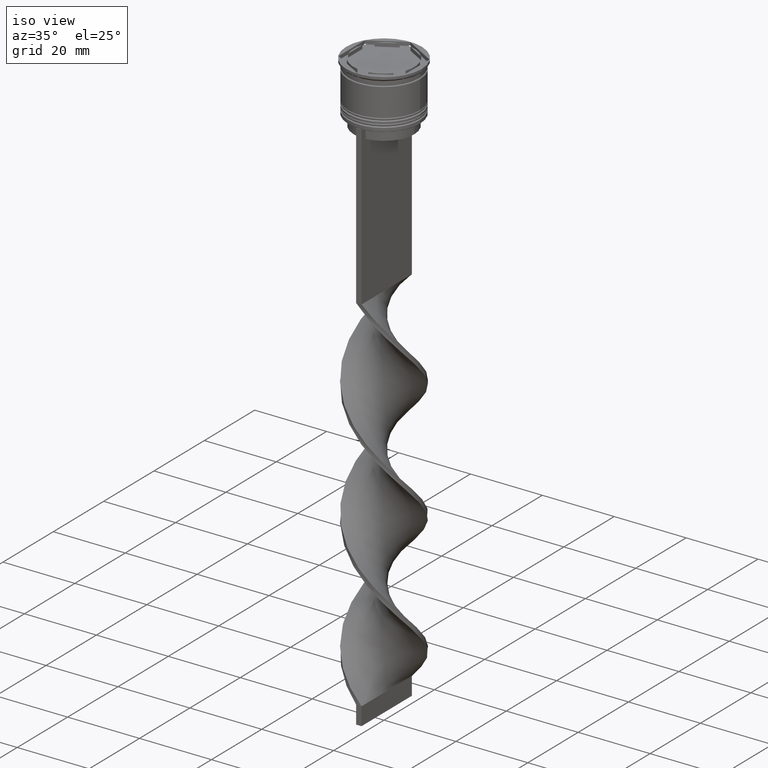
[diagram: clean part render]
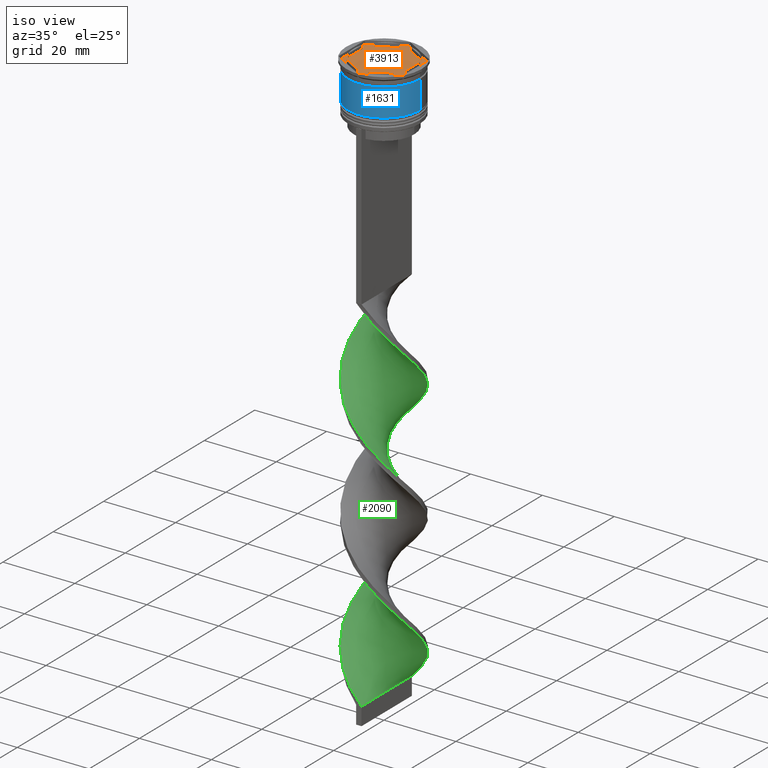
[diagram: same view with three faces highlighted in distinct colors, each labeled with its STEP entity id]
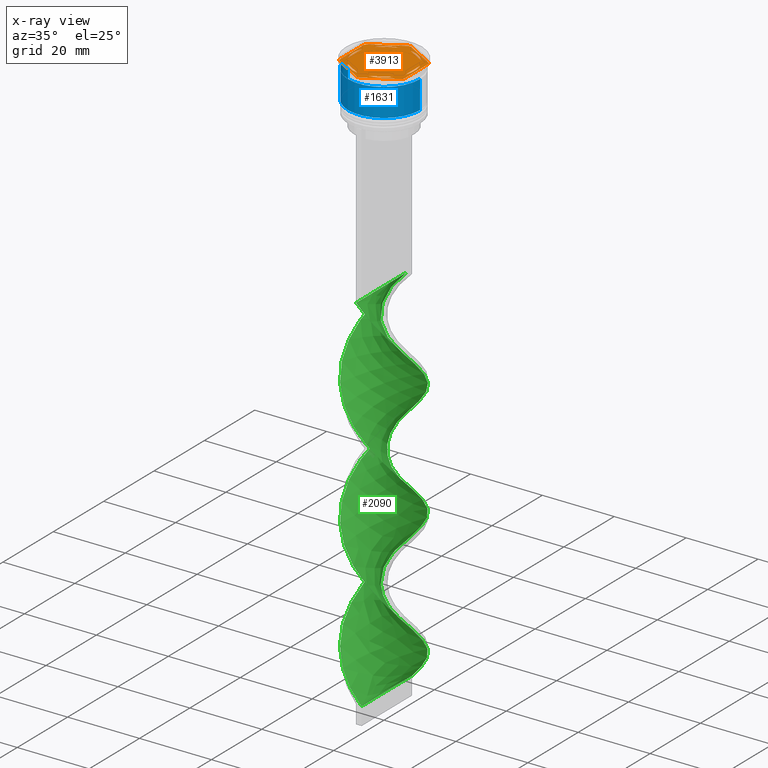
[diagram: x-ray of the same camera — body ghosted, the three highlighted faces saturated]
A machine part, iso view with three faces highlighted in distinct colors.
The next image is the same camera in x-ray (body ghosted, the three faces saturated) — at least one of them is partly hidden behind the body in this view.
Their STEP definitions:

[orange] entity #3913 — the highlighted planar face has unit normal (0, 0, 1).
#4 = CARTESIAN_POINT ( 'NONE',  ( 0.000000000000000000, 0.000000000000000000, -1.000000000000000000 ) ) ;
#44 = VECTOR ( 'NONE', #481, 1000.000000000000114 ) ;
#54 = AXIS2_PLACEMENT_3D ( 'NONE', #3561, #843, #2058 ) ;
#68 = ORIENTED_EDGE ( 'NONE', *, *, #3483, .F. ) ;
#87 = VERTEX_POINT ( 'NONE', #948 ) ;
#125 = LINE ( 'NONE', #2830, #44 ) ;
#128 = ORIENTED_EDGE ( 'NONE', *, *, #836, .F. ) ;
#136 = CARTESIAN_POINT ( 'NONE',  ( 0.000000000000000000, 10.39230484541326582, -1.000000000000000000 ) ) ;
#137 = CARTESIAN_POINT ( 'NONE',  ( 8.000000000000000000, -2.872281323269017417, -1.000000000000000888 ) ) ;
#143 = DIRECTION ( 'NONE',  ( -0.000000000000000000, -0.000000000000000000, -1.000000000000000000 ) ) ;
#147 = ORIENTED_EDGE ( 'NONE', *, *, #960, .F. ) ;
#159 = VERTEX_POINT ( 'NONE', #2141 ) ;
#208 = CARTESIAN_POINT ( 'NONE',  ( -8.000000000000000000, -2.872281323269016085, -1.000000000000000888 ) ) ;
#211 = VERTEX_POINT ( 'NONE', #3108 ) ;
#241 = DIRECTION ( 'NONE',  ( -0.8660254037844385966, 0.4999999999999999445, 0.000000000000000000 ) ) ;
#261 = DIRECTION ( 'NONE',  ( -1.877893248421449036E-16, -1.000000000000000000, 0.000000000000000000 ) ) ;
#295 = CARTESIAN_POINT ( 'NONE',  ( 0.000000000000000000, 0.000000000000000000, -1.000000000000000000 ) ) ;
#301 = CARTESIAN_POINT ( 'NONE',  ( 0.000000000000000000, 0.000000000000000000, -1.000000000000000000 ) ) ;
#307 = EDGE_CURVE ( 'NONE', #1102, #87, #1282, .T. ) ;
#309 = AXIS2_PLACEMENT_3D ( 'NONE', #1220, #1518, #2096 ) ;
#343 = ORIENTED_EDGE ( 'NONE', *, *, #1670, .F. ) ;
#393 = EDGE_LOOP ( 'NONE', ( #467, #3207, #2094 ) ) ;
#420 = DIRECTION ( 'NONE',  ( 0.000000000000000000, -1.000000000000000000, 0.000000000000000000 ) ) ;
#424 = DIRECTION ( 'NONE',  ( -0.8660254037844387076, -0.4999999999999998335, 0.000000000000000000 ) ) ;
#425 = AXIS2_PLACEMENT_3D ( 'NONE', #901, #3868, #2066 ) ;
#467 = ORIENTED_EDGE ( 'NONE', *, *, #2519, .F. ) ;
#471 = LINE ( 'NONE', #1091, #1264 ) ;
#481 = DIRECTION ( 'NONE',  ( 0.8660254037844385966, -0.4999999999999999445, 0.000000000000000000 ) ) ;
#494 = VECTOR ( 'NONE', #3934, 1000.000000000000000 ) ;
#505 = ORIENTED_EDGE ( 'NONE', *, *, #1133, .F. ) ;
#512 = DIRECTION ( 'NONE',  ( 0.8660254037844384856, 0.5000000000000003331, -0.000000000000000000 ) ) ;
#520 = DIRECTION ( 'NONE',  ( 0.8660254037844385966, 0.5000000000000001110, 0.000000000000000000 ) ) ;
#526 = CARTESIAN_POINT ( 'NONE',  ( -8.656921938165295316, -5.394228634059957450, -1.000000000000000000 ) ) ;
#583 = AXIS2_PLACEMENT_3D ( 'NONE', #301, #1162, #2373 ) ;
#599 = LINE ( 'NONE', #3295, #1701 ) ;
#608 = FACE_BOUND ( 'NONE', #3576, .T. ) ;
#617 = EDGE_CURVE ( 'NONE', #211, #1432, #1482, .T. ) ;
#619 = ORIENTED_EDGE ( 'NONE', *, *, #2433, .T. ) ;
#627 = VECTOR ( 'NONE', #424, 1000.000000000000114 ) ;
#635 = ORIENTED_EDGE ( 'NONE', *, *, #712, .F. ) ;
#643 = EDGE_CURVE ( 'NONE', #2632, #3436, #3213, .T. ) ;
#644 = LINE ( 'NONE', #3596, #494 ) ;
#658 = DIRECTION ( 'NONE',  ( 1.000000000000000000, 0.000000000000000000, 0.000000000000000000 ) ) ;
#665 = EDGE_CURVE ( 'NONE', #2083, #3453, #3096, .T. ) ;
#696 = CARTESIAN_POINT ( 'NONE',  ( 0.3430780618347059052, -10.19422863405994306, -1.000000000000000000 ) ) ;
#697 = VECTOR ( 'NONE', #1403, 1000.000000000000114 ) ;
#712 = EDGE_CURVE ( 'NONE', #2985, #3130, #2264, .T. ) ;
#716 = DIRECTION ( 'NONE',  ( 1.000000000000000000, 0.000000000000000000, 0.000000000000000000 ) ) ;
#773 = DIRECTION ( 'NONE',  ( -0.8660254037844385966, 0.5000000000000000000, 0.000000000000000000 ) ) ;
#779 = DIRECTION ( 'NONE',  ( 1.000000000000000000, 0.000000000000000000, 0.000000000000000000 ) ) ;
#836 = EDGE_CURVE ( 'NONE', #1102, #1211, #2150, .T. ) ;
#843 = DIRECTION ( 'NONE',  ( 0.000000000000000000, 0.000000000000000000, 1.000000000000000000 ) ) ;
#860 = EDGE_CURVE ( 'NONE', #2332, #2998, #599, .T. ) ;
#866 = FACE_BOUND ( 'NONE', #1568, .T. ) ;
#883 = VECTOR ( 'NONE', #261, 1000.000000000000000 ) ;
#901 = CARTESIAN_POINT ( 'NONE',  ( 0.000000000000000000, 0.000000000000000000, -1.000000000000000000 ) ) ;
#909 = DIRECTION ( 'NONE',  ( -0.000000000000000000, -0.000000000000000000, -1.000000000000000000 ) ) ;
#925 = DIRECTION ( 'NONE',  ( -0.000000000000000000, -0.000000000000000000, -1.000000000000000000 ) ) ;
#932 = EDGE_CURVE ( 'NONE', #1104, #1947, #2971, .T. ) ;
#948 = CARTESIAN_POINT ( 'NONE',  ( -8.656921938165297092, 5.394228634059953009, -1.000000000000000000 ) ) ;
#960 = EDGE_CURVE ( 'NONE', #159, #1144, #125, .T. ) ;
#978 = CARTESIAN_POINT ( 'NONE',  ( 0.000000000000000000, 0.000000000000000000, -1.000000000000000000 ) ) ;
#1006 = LINE ( 'NONE', #2221, #627 ) ;
#1013 = EDGE_CURVE ( 'NONE', #3221, #3523, #1006, .T. ) ;
#1024 = DIRECTION ( 'NONE',  ( -0.8660254037844385966, -0.5000000000000001110, 0.000000000000000000 ) ) ;
#1026 = CARTESIAN_POINT ( 'NONE',  ( -8.500000000000000000, 0.000000000000000000, -1.000000000000000000 ) ) ;
#1091 = CARTESIAN_POINT ( 'NONE',  ( 9.000000000000001776, -5.196152422706632024, -1.000000000000000000 ) ) ;
#1102 = VERTEX_POINT ( 'NONE', #3607 ) ;
#1104 = VERTEX_POINT ( 'NONE', #526 ) ;
#1124 = CARTESIAN_POINT ( 'NONE',  ( 1.512531407233452363, -8.364343891910017703, -1.000000000000000888 ) ) ;
#1133 = EDGE_CURVE ( 'NONE', #2380, #87, #2520, .T. ) ;
#1137 = CARTESIAN_POINT ( 'NONE',  ( 0.000000000000000000, 0.000000000000000000, -1.000000000000000000 ) ) ;
#1144 = VERTEX_POINT ( 'NONE', #2999 ) ;
#1145 = DIRECTION ( 'NONE',  ( -0.000000000000000000, -0.000000000000000000, -1.000000000000000000 ) ) ;
#1162 = DIRECTION ( 'NONE',  ( 0.000000000000000000, 0.000000000000000000, 1.000000000000000000 ) ) ;
#1199 = CARTESIAN_POINT ( 'NONE',  ( 2.607697573705103160E-15, -10.39230484541326405, -1.000000000000000000 ) ) ;
#1200 = CARTESIAN_POINT ( 'NONE',  ( 0.000000000000000000, 0.000000000000000000, -1.000000000000000000 ) ) ;
#1211 = VERTEX_POINT ( 'NONE', #2043 ) ;
#1220 = CARTESIAN_POINT ( 'NONE',  ( 0.000000000000000000, 0.000000000000000000, -1.000000000000000000 ) ) ;
#1224 = PLANE ( 'NONE',  #583 ) ;
#1259 = CIRCLE ( 'NONE', #3412, 8.500000000000000000 ) ;
#1264 = VECTOR ( 'NONE', #3509, 1000.000000000000000 ) ;
#1282 = LINE ( 'NONE', #136, #3926 ) ;
#1336 = CARTESIAN_POINT ( 'NONE',  ( -9.000000000000001776, 5.196152422706632024, -1.000000000000000000 ) ) ;
#1343 = CARTESIAN_POINT ( 'NONE',  ( -9.000000000000001776, -5.196152422706632912, -1.000000000000000000 ) ) ;
#1347 = ORIENTED_EDGE ( 'NONE', *, *, #665, .F. ) ;
#1353 = DIRECTION ( 'NONE',  ( 0.000000000000000000, 0.000000000000000000, 1.000000000000000000 ) ) ;
#1403 = DIRECTION ( 'NONE',  ( 0.8660254037844387076, -0.4999999999999997224, 0.000000000000000000 ) ) ;
#1418 = LINE ( 'NONE', #3899, #2983 ) ;
#1432 = VERTEX_POINT ( 'NONE', #137 ) ;
#1438 = CARTESIAN_POINT ( 'NONE',  ( -8.000000000000000000, 2.872281323269016085, -1.000000000000000888 ) ) ;
#1448 = ORIENTED_EDGE ( 'NONE', *, *, #932, .F. ) ;
#1451 = VECTOR ( 'NONE', #420, 1000.000000000000000 ) ;
#1457 = CARTESIAN_POINT ( 'NONE',  ( 6.487468592766547637, -5.492062568641006060, -1.000000000000000888 ) ) ;
#1466 = EDGE_CURVE ( 'NONE', #2380, #1947, #2545, .T. ) ;
#1471 = EDGE_LOOP ( 'NONE', ( #3571, #147 ) ) ;
#1481 = LINE ( 'NONE', #1199, #2101 ) ;
#1482 = LINE ( 'NONE', #3600, #883 ) ;
#1487 = ORIENTED_EDGE ( 'NONE', *, *, #3276, .T. ) ;
#1496 = EDGE_CURVE ( 'NONE', #2110, #3540, #1259, .T. ) ;
#1518 = DIRECTION ( 'NONE',  ( 0.000000000000000000, 0.000000000000000000, 1.000000000000000000 ) ) ;
#1533 = ORIENTED_EDGE ( 'NONE', *, *, #2237, .F. ) ;
#1568 = EDGE_LOOP ( 'NONE', ( #3384, #2254 ) ) ;
#1609 = VERTEX_POINT ( 'NONE', #3283 ) ;
#1643 = EDGE_LOOP ( 'NONE', ( #2719, #1533 ) ) ;
#1648 = DIRECTION ( 'NONE',  ( 1.000000000000000000, 0.000000000000000000, 0.000000000000000000 ) ) ;
#1665 = ORIENTED_EDGE ( 'NONE', *, *, #860, .F. ) ;
#1670 = EDGE_CURVE ( 'NONE', #3523, #3221, #2583, .T. ) ;
#1694 = DIRECTION ( 'NONE',  ( 1.000000000000000000, 0.000000000000000000, 0.000000000000000000 ) ) ;
#1701 = VECTOR ( 'NONE', #512, 1000.000000000000114 ) ;
#1768 = AXIS2_PLACEMENT_3D ( 'NONE', #3187, #143, #1648 ) ;
#1807 = DIRECTION ( 'NONE',  ( -0.000000000000000000, -0.000000000000000000, -1.000000000000000000 ) ) ;
#1814 = EDGE_CURVE ( 'NONE', #2632, #3130, #471, .T. ) ;
#1896 = DIRECTION ( 'NONE',  ( 1.000000000000000000, 0.000000000000000000, 0.000000000000000000 ) ) ;
#1908 = AXIS2_PLACEMENT_3D ( 'NONE', #2555, #3176, #716 ) ;
#1940 = CARTESIAN_POINT ( 'NONE',  ( -6.487468592766552078, -5.492062568641001619, -1.000000000000000888 ) ) ;
#1941 = ORIENTED_EDGE ( 'NONE', *, *, #1013, .F. ) ;
#1947 = VERTEX_POINT ( 'NONE', #3357 ) ;
#1948 = EDGE_CURVE ( 'NONE', #1144, #159, #2849, .T. ) ;
#1951 = EDGE_CURVE ( 'NONE', #1432, #211, #3672, .T. ) ;
#1970 = AXIS2_PLACEMENT_3D ( 'NONE', #978, #3395, #1896 ) ;
#1975 = EDGE_CURVE ( 'NONE', #3540, #2315, #644, .T. ) ;
#2018 = DIRECTION ( 'NONE',  ( 1.000000000000000000, 0.000000000000000000, 0.000000000000000000 ) ) ;
#2043 = CARTESIAN_POINT ( 'NONE',  ( 0.3430780618347050170, 10.19422863405994306, -1.000000000000000000 ) ) ;
#2058 = DIRECTION ( 'NONE',  ( 1.000000000000000000, 0.000000000000000000, 0.000000000000000000 ) ) ;
#2059 = FACE_BOUND ( 'NONE', #393, .T. ) ;
#2066 = DIRECTION ( 'NONE',  ( 1.000000000000000000, 1.598721155460225418E-14, 0.000000000000000000 ) ) ;
#2083 = VERTEX_POINT ( 'NONE', #696 ) ;
#2094 = ORIENTED_EDGE ( 'NONE', *, *, #1496, .F. ) ;
#2096 = DIRECTION ( 'NONE',  ( 1.000000000000000000, 0.000000000000000000, 0.000000000000000000 ) ) ;
#2101 = VECTOR ( 'NONE', #520, 1000.000000000000000 ) ;
#2102 = FACE_OUTER_BOUND ( 'NONE', #2388, .T. ) ;
#2105 = CARTESIAN_POINT ( 'NONE',  ( 9.000000000000001776, 4.799999999999988276, -1.000000000000000000 ) ) ;
#2107 = CARTESIAN_POINT ( 'NONE',  ( 0.000000000000000000, 0.000000000000000000, -1.000000000000000000 ) ) ;
#2110 = VERTEX_POINT ( 'NONE', #1026 ) ;
#2136 = DIRECTION ( 'NONE',  ( 1.000000000000000000, 0.000000000000000000, 0.000000000000000000 ) ) ;
#2141 = CARTESIAN_POINT ( 'NONE',  ( 1.512531407233448366, 8.364343891910017703, -1.000000000000000888 ) ) ;
#2150 = CIRCLE ( 'NONE', #425, 10.19999999999999574 ) ;
#2189 = CARTESIAN_POINT ( 'NONE',  ( -0.3430780618347024080, -10.19422863405994306, -1.000000000000000000 ) ) ;
#2202 = VERTEX_POINT ( 'NONE', #1940 ) ;
#2218 = VECTOR ( 'NONE', #773, 1000.000000000000227 ) ;
#2221 = CARTESIAN_POINT ( 'NONE',  ( -8.673617379884035472E-16, -9.237604307034013473, -1.000000000000000888 ) ) ;
#2237 = EDGE_CURVE ( 'NONE', #1609, #2202, #1418, .T. ) ;
#2254 = ORIENTED_EDGE ( 'NONE', *, *, #617, .F. ) ;
#2264 = CIRCLE ( 'NONE', #3345, 10.19999999999999574 ) ;
#2273 = AXIS2_PLACEMENT_3D ( 'NONE', #295, #2708, #658 ) ;
#2284 = CARTESIAN_POINT ( 'NONE',  ( -9.000000000000001776, 4.799999999999988276, -1.000000000000000000 ) ) ;
#2313 = ORIENTED_EDGE ( 'NONE', *, *, #1814, .T. ) ;
#2315 = VERTEX_POINT ( 'NONE', #1438 ) ;
#2331 = AXIS2_PLACEMENT_3D ( 'NONE', #1200, #909, #3303 ) ;
#2332 = VERTEX_POINT ( 'NONE', #2927 ) ;
#2334 = CARTESIAN_POINT ( 'NONE',  ( 8.656921938165297092, 5.394228634059953897, -1.000000000000000000 ) ) ;
#2335 = ORIENTED_EDGE ( 'NONE', *, *, #307, .T. ) ;
#2345 = CIRCLE ( 'NONE', #54, 8.500000000000000000 ) ;
#2357 = EDGE_CURVE ( 'NONE', #2202, #1609, #2345, .T. ) ;
#2373 = DIRECTION ( 'NONE',  ( 1.000000000000000000, 0.000000000000000000, -0.000000000000000000 ) ) ;
#2380 = VERTEX_POINT ( 'NONE', #2284 ) ;
#2388 = EDGE_LOOP ( 'NONE', ( #2313, #635, #619, #128, #2335, #505, #3883, #1448, #2554, #1347, #1487, #3526 ) ) ;
#2394 = FACE_BOUND ( 'NONE', #1643, .T. ) ;
#2417 = FACE_BOUND ( 'NONE', #2875, .T. ) ;
#2433 = EDGE_CURVE ( 'NONE', #2985, #1211, #3194, .T. ) ;
#2505 = CARTESIAN_POINT ( 'NONE',  ( 0.000000000000000000, 0.000000000000000000, -1.000000000000000000 ) ) ;
#2519 = EDGE_CURVE ( 'NONE', #2315, #2110, #3863, .T. ) ;
#2520 = CIRCLE ( 'NONE', #3857, 10.19999999999999574 ) ;
#2545 = LINE ( 'NONE', #1336, #1451 ) ;
#2554 = ORIENTED_EDGE ( 'NONE', *, *, #2944, .T. ) ;
#2555 = CARTESIAN_POINT ( 'NONE',  ( 0.000000000000000000, 0.000000000000000000, -1.000000000000000000 ) ) ;
#2583 = CIRCLE ( 'NONE', #2976, 8.500000000000000000 ) ;
#2618 = CARTESIAN_POINT ( 'NONE',  ( 9.000000000000001776, 5.196152422706632912, -1.000000000000000000 ) ) ;
#2632 = VERTEX_POINT ( 'NONE', #3489 ) ;
#2708 = DIRECTION ( 'NONE',  ( 0.000000000000000000, 0.000000000000000000, 1.000000000000000000 ) ) ;
#2719 = ORIENTED_EDGE ( 'NONE', *, *, #2357, .F. ) ;
#2830 = CARTESIAN_POINT ( 'NONE',  ( 8.000000000000000000, 4.618802153517006737, -1.000000000000000888 ) ) ;
#2849 = CIRCLE ( 'NONE', #2273, 8.500000000000000000 ) ;
#2875 = EDGE_LOOP ( 'NONE', ( #343, #1941 ) ) ;
#2899 = AXIS2_PLACEMENT_3D ( 'NONE', #4, #1807, #3678 ) ;
#2927 = CARTESIAN_POINT ( 'NONE',  ( -6.487468592766553854, 5.492062568640999842, -1.000000000000000888 ) ) ;
#2944 = EDGE_CURVE ( 'NONE', #1104, #3453, #3800, .T. ) ;
#2971 = CIRCLE ( 'NONE', #1768, 10.19999999999999574 ) ;
#2976 = AXIS2_PLACEMENT_3D ( 'NONE', #1137, #3898, #1694 ) ;
#2983 = VECTOR ( 'NONE', #241, 1000.000000000000114 ) ;
#2985 = VERTEX_POINT ( 'NONE', #2334 ) ;
#2998 = VERTEX_POINT ( 'NONE', #3546 ) ;
#2999 = CARTESIAN_POINT ( 'NONE',  ( 6.487468592766552078, 5.492062568641001619, -1.000000000000000888 ) ) ;
#3052 = FACE_BOUND ( 'NONE', #1471, .T. ) ;
#3096 = CIRCLE ( 'NONE', #2899, 10.19999999999999574 ) ;
#3108 = CARTESIAN_POINT ( 'NONE',  ( 8.000000000000000000, 2.872281323269014752, -1.000000000000000888 ) ) ;
#3130 = VERTEX_POINT ( 'NONE', #2105 ) ;
#3176 = DIRECTION ( 'NONE',  ( 0.000000000000000000, 0.000000000000000000, 1.000000000000000000 ) ) ;
#3187 = CARTESIAN_POINT ( 'NONE',  ( 0.000000000000000000, 0.000000000000000000, -1.000000000000000000 ) ) ;
#3194 = LINE ( 'NONE', #2618, #2218 ) ;
#3207 = ORIENTED_EDGE ( 'NONE', *, *, #1975, .F. ) ;
#3213 = CIRCLE ( 'NONE', #2331, 10.19999999999999574 ) ;
#3221 = VERTEX_POINT ( 'NONE', #1457 ) ;
#3276 = EDGE_CURVE ( 'NONE', #2083, #3436, #1481, .T. ) ;
#3283 = CARTESIAN_POINT ( 'NONE',  ( -1.512531407233448366, -8.364343891910017703, -1.000000000000000888 ) ) ;
#3295 = CARTESIAN_POINT ( 'NONE',  ( 8.673617379884035472E-16, 9.237604307034013473, -1.000000000000000888 ) ) ;
#3303 = DIRECTION ( 'NONE',  ( 1.000000000000000000, 8.881784197001252323E-16, 0.000000000000000000 ) ) ;
#3345 = AXIS2_PLACEMENT_3D ( 'NONE', #3639, #925, #2136 ) ;
#3357 = CARTESIAN_POINT ( 'NONE',  ( -9.000000000000001776, -4.799999999999988276, -1.000000000000000000 ) ) ;
#3380 = CARTESIAN_POINT ( 'NONE',  ( 8.656921938165297092, -5.394228634059953009, -1.000000000000000000 ) ) ;
#3384 = ORIENTED_EDGE ( 'NONE', *, *, #1951, .F. ) ;
#3395 = DIRECTION ( 'NONE',  ( 0.000000000000000000, 0.000000000000000000, 1.000000000000000000 ) ) ;
#3412 = AXIS2_PLACEMENT_3D ( 'NONE', #2505, #1353, #779 ) ;
#3436 = VERTEX_POINT ( 'NONE', #3380 ) ;
#3453 = VERTEX_POINT ( 'NONE', #2189 ) ;
#3483 = EDGE_CURVE ( 'NONE', #2998, #2332, #3554, .T. ) ;
#3489 = CARTESIAN_POINT ( 'NONE',  ( 9.000000000000001776, -4.799999999999988276, -1.000000000000000000 ) ) ;
#3509 = DIRECTION ( 'NONE',  ( 0.000000000000000000, 1.000000000000000000, 0.000000000000000000 ) ) ;
#3523 = VERTEX_POINT ( 'NONE', #1124 ) ;
#3526 = ORIENTED_EDGE ( 'NONE', *, *, #643, .F. ) ;
#3540 = VERTEX_POINT ( 'NONE', #208 ) ;
#3546 = CARTESIAN_POINT ( 'NONE',  ( -1.512531407233451475, 8.364343891910017703, -1.000000000000000888 ) ) ;
#3554 = CIRCLE ( 'NONE', #1970, 8.500000000000000000 ) ;
#3561 = CARTESIAN_POINT ( 'NONE',  ( 0.000000000000000000, 0.000000000000000000, -1.000000000000000000 ) ) ;
#3571 = ORIENTED_EDGE ( 'NONE', *, *, #1948, .F. ) ;
#3576 = EDGE_LOOP ( 'NONE', ( #68, #1665 ) ) ;
#3596 = CARTESIAN_POINT ( 'NONE',  ( -8.000000000000000000, 4.618802153517004072, -1.000000000000000888 ) ) ;
#3600 = CARTESIAN_POINT ( 'NONE',  ( 7.999999999999998224, -4.618802153517008513, -1.000000000000000888 ) ) ;
#3607 = CARTESIAN_POINT ( 'NONE',  ( -0.3430780618347059052, 10.19422863405994306, -1.000000000000000000 ) ) ;
#3639 = CARTESIAN_POINT ( 'NONE',  ( 0.000000000000000000, 0.000000000000000000, -1.000000000000000000 ) ) ;
#3672 = CIRCLE ( 'NONE', #309, 8.500000000000000000 ) ;
#3678 = DIRECTION ( 'NONE',  ( 1.000000000000000000, 0.000000000000000000, 0.000000000000000000 ) ) ;
#3800 = LINE ( 'NONE', #1343, #697 ) ;
#3857 = AXIS2_PLACEMENT_3D ( 'NONE', #2107, #1145, #2018 ) ;
#3863 = CIRCLE ( 'NONE', #1908, 8.500000000000000000 ) ;
#3868 = DIRECTION ( 'NONE',  ( -0.000000000000000000, -0.000000000000000000, -1.000000000000000000 ) ) ;
#3883 = ORIENTED_EDGE ( 'NONE', *, *, #1466, .T. ) ;
#3898 = DIRECTION ( 'NONE',  ( 0.000000000000000000, 0.000000000000000000, 1.000000000000000000 ) ) ;
#3899 = CARTESIAN_POINT ( 'NONE',  ( -8.000000000000000000, -4.618802153517006737, -1.000000000000000888 ) ) ;
#3913 = ADVANCED_FACE ( 'NONE', ( #3052, #866, #2417, #2394, #2059, #608, #2102 ), #1224, .T. ) ;
#3926 = VECTOR ( 'NONE', #1024, 1000.000000000000000 ) ;
#3934 = DIRECTION ( 'NONE',  ( 0.000000000000000000, 1.000000000000000000, 0.000000000000000000 ) ) ;

[blue] entity #1631 — the highlighted cylindrical surface (partial cylindrical patch) has radius 10 mm, axis along (-0, -0, 1).
#426 = EDGE_CURVE ( 'NONE', #3867, #2497, #2014, .T. ) ;
#499 = CYLINDRICAL_SURFACE ( 'NONE', #889, 10.00000000000000000 ) ;
#515 = DIRECTION ( 'NONE',  ( -0.000000000000000000, -0.000000000000000000, 1.000000000000000000 ) ) ;
#562 = ORIENTED_EDGE ( 'NONE', *, *, #2795, .T. ) ;
#626 = CARTESIAN_POINT ( 'NONE',  ( -10.00000000000000178, 1.224646799147353454E-15, -10.50000000000000000 ) ) ;
#821 = CIRCLE ( 'NONE', #1714, 9.999999999999998224 ) ;
#889 = AXIS2_PLACEMENT_3D ( 'NONE', #3560, #1994, #3602 ) ;
#1108 = LINE ( 'NONE', #3846, #1963 ) ;
#1288 = DIRECTION ( 'NONE',  ( -0.000000000000000000, -0.000000000000000000, 1.000000000000000000 ) ) ;
#1571 = CARTESIAN_POINT ( 'NONE',  ( 10.00000000000000000, 0.000000000000000000, 0.000000000000000000 ) ) ;
#1631 = ADVANCED_FACE ( 'NONE', ( #3854 ), #499, .T. ) ;
#1714 = AXIS2_PLACEMENT_3D ( 'NONE', #2644, #2307, #3855 ) ;
#1759 = DIRECTION ( 'NONE',  ( 1.000000000000000000, 0.000000000000000000, 0.000000000000000000 ) ) ;
#1963 = VECTOR ( 'NONE', #515, 1000.000000000000000 ) ;
#1994 = DIRECTION ( 'NONE',  ( -0.000000000000000000, -0.000000000000000000, 1.000000000000000000 ) ) ;
#2014 = CIRCLE ( 'NONE', #3917, 10.00000000000000178 ) ;
#2242 = LINE ( 'NONE', #1571, #3109 ) ;
#2307 = DIRECTION ( 'NONE',  ( -0.000000000000000000, -0.000000000000000000, 1.000000000000000000 ) ) ;
#2322 = EDGE_CURVE ( 'NONE', #3287, #2723, #821, .T. ) ;
#2497 = VERTEX_POINT ( 'NONE', #3508 ) ;
#2644 = CARTESIAN_POINT ( 'NONE',  ( 0.000000000000000000, 0.000000000000000000, -2.700000000000001954 ) ) ;
#2665 = EDGE_CURVE ( 'NONE', #3867, #3287, #1108, .T. ) ;
#2723 = VERTEX_POINT ( 'NONE', #3193 ) ;
#2795 = EDGE_CURVE ( 'NONE', #2497, #2723, #2242, .T. ) ;
#2942 = ORIENTED_EDGE ( 'NONE', *, *, #2665, .F. ) ;
#2945 = CARTESIAN_POINT ( 'NONE',  ( -9.999999999999998224, 1.224646799147353256E-15, -2.700000000000001954 ) ) ;
#3020 = ORIENTED_EDGE ( 'NONE', *, *, #2322, .F. ) ;
#3109 = VECTOR ( 'NONE', #1288, 1000.000000000000000 ) ;
#3193 = CARTESIAN_POINT ( 'NONE',  ( 9.999999999999998224, 0.000000000000000000, -2.700000000000001954 ) ) ;
#3287 = VERTEX_POINT ( 'NONE', #2945 ) ;
#3508 = CARTESIAN_POINT ( 'NONE',  ( 10.00000000000000178, 0.000000000000000000, -10.50000000000000000 ) ) ;
#3533 = CARTESIAN_POINT ( 'NONE',  ( 0.000000000000000000, 0.000000000000000000, -10.50000000000000000 ) ) ;
#3559 = DIRECTION ( 'NONE',  ( -0.000000000000000000, -0.000000000000000000, 1.000000000000000000 ) ) ;
#3560 = CARTESIAN_POINT ( 'NONE',  ( 0.000000000000000000, 0.000000000000000000, 0.000000000000000000 ) ) ;
#3564 = EDGE_LOOP ( 'NONE', ( #2942, #3844, #562, #3020 ) ) ;
#3602 = DIRECTION ( 'NONE',  ( 1.000000000000000000, 0.000000000000000000, 0.000000000000000000 ) ) ;
#3844 = ORIENTED_EDGE ( 'NONE', *, *, #426, .T. ) ;
#3846 = CARTESIAN_POINT ( 'NONE',  ( -10.00000000000000000, 1.224646799147353256E-15, 0.000000000000000000 ) ) ;
#3854 = FACE_OUTER_BOUND ( 'NONE', #3564, .T. ) ;
#3855 = DIRECTION ( 'NONE',  ( 1.000000000000000000, 0.000000000000000000, 0.000000000000000000 ) ) ;
#3867 = VERTEX_POINT ( 'NONE', #626 ) ;
#3917 = AXIS2_PLACEMENT_3D ( 'NONE', #3533, #3559, #1759 ) ;

[green] entity #2090 — the highlighted face is a freeform B-spline surface patch.
#14 = CARTESIAN_POINT ( 'NONE',  ( 9.992147806631782814, -1.352917631973301171, -106.2555555555555742 ) ) ;
#15 = CARTESIAN_POINT ( 'NONE',  ( 1.345506207627239936, -9.937409775451381932, -127.5777777777777828 ) ) ;
#31 = CARTESIAN_POINT ( 'NONE',  ( -3.824412864799129785, 9.329912654898727453, -128.7000000000000171 ) ) ;
#43 = CARTESIAN_POINT ( 'NONE',  ( -10.02361530113347143, 0.2993932111503319060, -73.71111111111112280 ) ) ;
#50 = CARTESIAN_POINT ( 'NONE',  ( 1.801042352656760270, -9.921171823550743341, -92.78888888888889142 ) ) ;
#52 = CARTESIAN_POINT ( 'NONE',  ( 1.801042352656767820, 9.921171823550748670, -157.8777777777777942 ) ) ;
#65 = CARTESIAN_POINT ( 'NONE',  ( -7.288592354231107073, 6.967770475720652890, -133.1888888888889255 ) ) ;
#69 = CARTESIAN_POINT ( 'NONE',  ( -7.288592354231107073, 6.967770475720652890, -65.85555555555555429 ) ) ;
#72 = CARTESIAN_POINT ( 'NONE',  ( 9.492508010833715204, 3.400837481082922498, -146.6555555555555657 ) ) ;
#84 = CARTESIAN_POINT ( 'NONE',  ( 7.933296209543083677, -6.133947444480537747, -100.6444444444444599 ) ) ;
#88 = CARTESIAN_POINT ( 'NONE',  ( 10.05508279563516005, 0.7541312096726352499, -108.5000000000000000 ) ) ;
#108 = CARTESIAN_POINT ( 'NONE',  ( 1.345506207627240158, -9.937409775451381932, -60.24444444444444713 ) ) ;
#120 = CARTESIAN_POINT ( 'NONE',  ( -9.866822606231991699, -1.791176054202737955, -143.2888888888889198 ) ) ;
#130 = CARTESIAN_POINT ( 'NONE',  ( 10.02361530113347854, 0.2993932111503290194, -75.95555555555554861 ) ) ;
#146 = CARTESIAN_POINT ( 'NONE',  ( 8.285254037844389075, -5.649519052838332556, -136.5555555555555713 ) ) ;
#148 = CARTESIAN_POINT ( 'NONE',  ( 3.382207337526053514, -9.440507058732864110, -62.48888888888889426 ) ) ;
#160 = CARTESIAN_POINT ( 'NONE',  ( -9.278802417170323835, -3.803462330970837968, -145.5333333333333599 ) ) ;
#168 = CARTESIAN_POINT ( 'NONE',  ( -2.812727608727946471, 9.625542239224735397, -60.24444444444444713 ) ) ;
#170 = CARTESIAN_POINT ( 'NONE',  ( 4.374444612454390757, -9.085022743012229895, -63.61111111111112137 ) ) ;
#186 = CARTESIAN_POINT ( 'NONE',  ( -10.05508279563516005, -0.7541312096726364711, -142.1666666666666856 ) ) ;
#193 = CARTESIAN_POINT ( 'NONE',  ( -7.288592354231107073, 6.967770475720652890, -65.85555555555555429 ) ) ;
#212 = CARTESIAN_POINT ( 'NONE',  ( -9.992147806631791696, -1.352917631973290291, -110.7444444444444542 ) ) ;
#231 = CARTESIAN_POINT ( 'NONE',  ( -9.278802417170329164, 3.803462330970842409, -105.1333333333333400 ) ) ;
#255 = CARTESIAN_POINT ( 'NONE',  ( -6.167734941832652140, -7.976995022925429168, -83.81111111111111711 ) ) ;
#256 = CARTESIAN_POINT ( 'NONE',  ( 10.02361530113347854, 0.2993932111503289084, -75.95555555555554861 ) ) ;
#275 = CARTESIAN_POINT ( 'NONE',  ( -10.05508279563516005, -0.7541312096726364711, -142.1666666666666856 ) ) ;
#276 = CARTESIAN_POINT ( 'NONE',  ( 3.382207337526053514, -9.440507058732864110, -129.8222222222222229 ) ) ;
#293 = CARTESIAN_POINT ( 'NONE',  ( -9.035254037844394404, -4.350480947161666556, -114.1111111111111285 ) ) ;
#313 = CARTESIAN_POINT ( 'NONE',  ( 6.484615268705939073, -7.649331004530118605, -98.40000000000001990 ) ) ;
#316 = CARTESIAN_POINT ( 'NONE',  ( -2.812727608727953577, -9.625542239224740726, -123.0888888888888886 ) ) ;
#334 = CARTESIAN_POINT ( 'NONE',  ( 7.691465658176945830, 6.520334342467818622, -115.2333333333333343 ) ) ;
#335 = CARTESIAN_POINT ( 'NONE',  ( 4.752525523989956646, 8.830402094119161660, -87.17777777777779136 ) ) ;
#347 = CARTESIAN_POINT ( 'NONE',  ( 8.578000064855062945, -5.300124413240421717, -101.7666666666666515 ) ) ;
#351 = CARTESIAN_POINT ( 'NONE',  ( 2.812727608727944251, -9.625542239224735397, -93.91111111111111143 ) ) ;
#355 = CARTESIAN_POINT ( 'NONE',  ( 6.929600300004801205, -7.248664682696631445, -66.97777777777777430 ) ) ;
#364 = CARTESIAN_POINT ( 'NONE',  ( 5.271089777143521893, 8.531008882968826867, -118.6000000000000085 ) ) ;
#370 = CARTESIAN_POINT ( 'NONE',  ( 8.879042417511829655, 4.778703763208831390, -112.9888888888888943 ) ) ;
#376 = CARTESIAN_POINT ( 'NONE',  ( 3.382207337526053958, -9.440507058732864110, -62.48888888888889426 ) ) ;
#387 = CARTESIAN_POINT ( 'NONE',  ( -9.866822606231991699, -1.791176054202737955, -75.95555555555554861 ) ) ;
#390 = CARTESIAN_POINT ( 'NONE',  ( 4.752525523989947764, -8.830402094119159884, -96.15555555555556566 ) ) ;
#394 = CARTESIAN_POINT ( 'NONE',  ( 8.285254037844389075, -5.649519052838332556, -69.22222222222222854 ) ) ;
#421 = CARTESIAN_POINT ( 'NONE',  ( -0.3010423526567673758, -10.07882817644925666, -157.8777777777777942 ) ) ;
#428 = CARTESIAN_POINT ( 'NONE',  ( 5.680638183180779954, 8.330891533339588761, -153.3888888888889142 ) ) ;
#430 = CARTESIAN_POINT ( 'NONE',  ( 0.3010423526567653774, -10.07882817644926376, -59.12222222222222712 ) ) ;
#447 = CARTESIAN_POINT ( 'NONE',  ( -9.742327908732745456, 2.376877556528109725, -138.8000000000000114 ) ) ;
#450 = CARTESIAN_POINT ( 'NONE',  ( -0.7499999999999997780, -10.00000000000000533, -125.3333333333333570 ) ) ;
#463 = CARTESIAN_POINT ( 'NONE',  ( -6.929600300004799429, -7.248664682696624340, -150.0222222222222115 ) ) ;
#468 = CARTESIAN_POINT ( 'NONE',  ( -4.752525523989961087, -8.830402094119159884, -120.8444444444444485 ) ) ;
#487 = CARTESIAN_POINT ( 'NONE',  ( -0.7499999999999997780, 9.999999999999998224, -58.00000000000000000 ) ) ;
#513 = CARTESIAN_POINT ( 'NONE',  ( -6.484615268705947067, -7.649331004530122158, -118.6000000000000085 ) ) ;
#533 = CARTESIAN_POINT ( 'NONE',  ( 0.3010423526567653774, -10.07882817644926376, -126.4555555555555628 ) ) ;
#542 = DIRECTION ( 'NONE',  ( 0.000000000000000000, 1.000000000000000000, 0.000000000000000000 ) ) ;
#556 = CARTESIAN_POINT ( 'NONE',  ( -2.812727608727946471, 9.625542239224735397, -127.5777777777777828 ) ) ;
#557 = CARTESIAN_POINT ( 'NONE',  ( 7.933296209543092559, 6.133947444480536859, -82.68888888888889710 ) ) ;
#566 = LINE ( 'NONE', #819, #2342 ) ;
#582 = CARTESIAN_POINT ( 'NONE',  ( 2.389970062597715827, 9.795991374453491218, -121.9666666666666544 ) ) ;
#584 = CARTESIAN_POINT ( 'NONE',  ( 9.678562416828826898, -2.828220898732844102, -72.58888888888890278 ) ) ;
#601 = CARTESIAN_POINT ( 'NONE',  ( 6.929600300004801205, -7.248664682696631445, -134.3111111111111313 ) ) ;
#616 = CARTESIAN_POINT ( 'NONE',  ( -5.680638183180772849, 8.330891533339585209, -130.9444444444444571 ) ) ;
#618 = CARTESIAN_POINT ( 'NONE',  ( 6.484615268705946178, 7.649331004530122158, -84.93333333333333712 ) ) ;
#632 =( BOUNDED_SURFACE ( )  B_SPLINE_SURFACE ( 1, 2, ( 
 ( #2781, #430, #108, #1329, #376, #976, #2536, #748, #355, #1653, #394, #1614, #715, #1966, #1274, #2859, #130, #3694, #2187, #1346, #1596, #992, #1047, #2819, #3394, #2204, #3748, #1573, #1949, #3136, #1894, #1306, #2244, #2804, #1291, #2498, #2512, #3726, #1012, #3552, #2280, #2364, #231, #2317, #3845, #2594, #2938, #212, #835, #3171, #3191, #1127, #1669, #3255, #513, #1734, #468, #3780, #1429, #1153, #450, #533, #2299, #791, #1106, #3572, #2874, #1752, #2960, #2567, #146, #2049, #1987, #3806, #2658, #2004, #1064, #1088, #2636, #857, #2340, #2028, #3870, #3209, #3233, #1363, #3525, #1450, #3488, #771, #1687 ),
 ( #487, #2893, #168, #1384, #1709, #3506, #2917, #193, #1408, #2616, #3825, #810, #1190, #3111, #43, #2114, #387, #1566, #2473, #3369, #651, #1607, #1495, #255, #1872, #3073, #2686, #2812, #2091, #3686, #969, #2386, #2181, #3592, #2405, #3091, #2491, #669, #84, #347, #3403, #3388, #685, #1888, #2704, #3701, #1299, #2771, #1475, #2506, #1584, #1263, #3717, #2068, #364, #903, #2794, #582, #3890, #3909, #1905, #3616, #556, #3275, #1773, #2982, #2196, #65, #1284, #1172, #986, #878, #3296, #1800, #3005, #275, #120, #2560, #2268, #2236, #2290, #1318, #3425, #3200, #2827, #2546, #3771, #1053, #762, #421, #3443 ) ),
 .UNSPECIFIED., .F., .F., .F. ) 
 B_SPLINE_SURFACE_WITH_KNOTS ( ( 2, 2 ),
 ( 3, 2, 2, 2, 2, 2, 2, 2, 2, 2, 2, 2, 2, 2, 2, 2, 2, 2, 2, 2, 2, 2, 2, 2, 2, 2, 2, 2, 2, 2, 2, 2, 2, 2, 2, 2, 2, 2, 2, 2, 2, 2, 2, 2, 2, 3 ),
 ( 0.000000000000000000, 1.000000000000000000 ),
 ( 0.000000000000000000, 0.01666666666666666644, 0.03333333333333333287, 0.05000000000000000278, 0.06666666666666666574, 0.08333333333333332871, 0.1000000000000000056, 0.1166666666666666685, 0.1333333333333333315, 0.1499999999999999944, 0.1666666666666666574, 0.1833333333333333204, 0.2000000000000000111, 0.2166666666666666741, 0.2333333333333333370, 0.2500000000000000000, 0.2666666666666666630, 0.2833333333333333259, 0.2999999999999999889, 0.3166666666666666519, 0.3333333333333333148, 0.3499999999999999778, 0.3666666666666666408, 0.3833333333333333592, 0.4000000000000000222, 0.4166666666666666852, 0.4333333333333333481, 0.4500000000000000111, 0.4666666666666666741, 0.4833333333333333370, 0.5000000000000000000, 0.5166666666666667185, 0.5333333333333333259, 0.5500000000000000444, 0.5666666666666666519, 0.5833333333333333703, 0.5999999999999999778, 0.6166666666666666963, 0.6333333333333333037, 0.6500000000000000222, 0.6666666666666666297, 0.6833333333333333481, 0.6999999999999999556, 0.7166666666666666741, 0.7333333333333332815, 0.7500000000000000000 ),
 .UNSPECIFIED. ) 
 GEOMETRIC_REPRESENTATION_ITEM ( )  RATIONAL_B_SPLINE_SURFACE ( (
 ( 1.000000000000000000, 0.9945218953682732899, 1.000000000000000000, 0.9945218953682732899, 1.000000000000000000, 0.9945218953682732899, 1.000000000000000000, 0.9945218953682732899, 1.000000000000000000, 0.9945218953682732899, 1.000000000000000000, 0.9945218953682732899, 1.000000000000000000, 0.9945218953682732899, 1.000000000000000000, 0.9945218953682732899, 1.000000000000000000, 0.9945218953682732899, 1.000000000000000000, 0.9945218953682732899, 1.000000000000000000, 0.9945218953682732899, 1.000000000000000000, 0.9945218953682732899, 1.000000000000000000, 0.9945218953682732899, 1.000000000000000000, 0.9945218953682732899, 1.000000000000000000, 0.9945218953682732899, 1.000000000000000000, 0.9945218953682732899, 1.000000000000000000, 0.9945218953682732899, 1.000000000000000000, 0.9945218953682732899, 1.000000000000000000, 0.9945218953682732899, 1.000000000000000000, 0.9945218953682732899, 1.000000000000000000, 0.9945218953682732899, 1.000000000000000000, 0.9945218953682732899, 1.000000000000000000, 0.9945218953682732899, 1.000000000000000000, 0.9945218953682732899, 1.000000000000000000, 0.9945218953682732899, 1.000000000000000000, 0.9945218953682732899, 1.000000000000000000, 0.9945218953682732899, 1.000000000000000000, 0.9945218953682732899, 1.000000000000000000, 0.9945218953682732899, 1.000000000000000000, 0.9945218953682732899, 1.000000000000000000, 0.9945218953682732899, 1.000000000000000000, 0.9945218953682732899, 1.000000000000000000, 0.9945218953682732899, 1.000000000000000000, 0.9945218953682732899, 1.000000000000000000, 0.9945218953682732899, 1.000000000000000000, 0.9945218953682732899, 1.000000000000000000, 0.9945218953682732899, 1.000000000000000000, 0.9945218953682732899, 1.000000000000000000, 0.9945218953682732899, 1.000000000000000000, 0.9945218953682732899, 1.000000000000000000, 0.9945218953682732899, 1.000000000000000000, 0.9945218953682732899, 1.000000000000000000, 0.9945218953682732899, 1.000000000000000000, 0.9945218953682732899, 1.000000000000000000, 0.9945218953682732899, 1.000000000000000000),
 ( 1.000000000000000000, 0.9945218953682732899, 1.000000000000000000, 0.9945218953682732899, 1.000000000000000000, 0.9945218953682732899, 1.000000000000000000, 0.9945218953682732899, 1.000000000000000000, 0.9945218953682732899, 1.000000000000000000, 0.9945218953682732899, 1.000000000000000000, 0.9945218953682732899, 1.000000000000000000, 0.9945218953682732899, 1.000000000000000000, 0.9945218953682732899, 1.000000000000000000, 0.9945218953682732899, 1.000000000000000000, 0.9945218953682732899, 1.000000000000000000, 0.9945218953682732899, 1.000000000000000000, 0.9945218953682732899, 1.000000000000000000, 0.9945218953682732899, 1.000000000000000000, 0.9945218953682732899, 1.000000000000000000, 0.9945218953682732899, 1.000000000000000000, 0.9945218953682732899, 1.000000000000000000, 0.9945218953682732899, 1.000000000000000000, 0.9945218953682732899, 1.000000000000000000, 0.9945218953682732899, 1.000000000000000000, 0.9945218953682732899, 1.000000000000000000, 0.9945218953682732899, 1.000000000000000000, 0.9945218953682732899, 1.000000000000000000, 0.9945218953682732899, 1.000000000000000000, 0.9945218953682732899, 1.000000000000000000, 0.9945218953682732899, 1.000000000000000000, 0.9945218953682732899, 1.000000000000000000, 0.9945218953682732899, 1.000000000000000000, 0.9945218953682732899, 1.000000000000000000, 0.9945218953682732899, 1.000000000000000000, 0.9945218953682732899, 1.000000000000000000, 0.9945218953682732899, 1.000000000000000000, 0.9945218953682732899, 1.000000000000000000, 0.9945218953682732899, 1.000000000000000000, 0.9945218953682732899, 1.000000000000000000, 0.9945218953682732899, 1.000000000000000000, 0.9945218953682732899, 1.000000000000000000, 0.9945218953682732899, 1.000000000000000000, 0.9945218953682732899, 1.000000000000000000, 0.9945218953682732899, 1.000000000000000000, 0.9945218953682732899, 1.000000000000000000, 0.9945218953682732899, 1.000000000000000000, 0.9945218953682732899, 1.000000000000000000, 0.9945218953682732899, 1.000000000000000000, 0.9945218953682732899, 1.000000000000000000) ) ) 
 REPRESENTATION_ITEM ( '' )  SURFACE ( )  );
#637 = CARTESIAN_POINT ( 'NONE',  ( 6.929600300004801205, 7.248664682696623451, -116.3555555555555685 ) ) ;
#640 = CARTESIAN_POINT ( 'NONE',  ( 0.3010423526567652663, -10.07882817644926376, -126.4555555555555770 ) ) ;
#651 = CARTESIAN_POINT ( 'NONE',  ( -8.285254037844385522, -5.649519052838325450, -80.44444444444445708 ) ) ;
#655 = CARTESIAN_POINT ( 'NONE',  ( -9.742327908732745456, 2.376877556528109725, -71.46666666666668277 ) ) ;
#656 = CARTESIAN_POINT ( 'NONE',  ( 7.933296209543092559, 6.133947444480536859, -150.0222222222222115 ) ) ;
#660 = CARTESIAN_POINT ( 'NONE',  ( 0.7499999999999985567, -9.999999999999998224, -159.0000000000000000 ) ) ;
#669 = CARTESIAN_POINT ( 'NONE',  ( 7.288592354231104409, -6.967770475720653778, -99.52222222222223991 ) ) ;
#672 = CARTESIAN_POINT ( 'NONE',  ( 7.933296209543083677, -6.133947444480537747, -100.6444444444444599 ) ) ;
#685 = CARTESIAN_POINT ( 'NONE',  ( 9.742327908732745456, -2.376877556528110169, -105.1333333333333400 ) ) ;
#690 = CARTESIAN_POINT ( 'NONE',  ( -3.382207337526053070, -9.440507058732857004, -87.17777777777779136 ) ) ;
#711 = CARTESIAN_POINT ( 'NONE',  ( -8.285254037844385522, -5.649519052838325450, -147.7777777777777715 ) ) ;
#713 = CARTESIAN_POINT ( 'NONE',  ( 9.035254037844392627, 4.350480947161671885, -147.7777777777777715 ) ) ;
#715 = CARTESIAN_POINT ( 'NONE',  ( 9.278802417170329164, -3.803462330970841521, -71.46666666666668277 ) ) ;
#743 = CARTESIAN_POINT ( 'NONE',  ( 0.7499999999999985567, -9.999999999999998224, -159.0000000000000000 ) ) ;
#748 = CARTESIAN_POINT ( 'NONE',  ( 6.167734941832653028, -7.976995022925438050, -65.85555555555555429 ) ) ;
#762 = CARTESIAN_POINT ( 'NONE',  ( -1.345506207627243267, -9.937409775451374827, -156.7555555555555600 ) ) ;
#765 = ORIENTED_EDGE ( 'NONE', *, *, #1303, .F. ) ;
#771 = CARTESIAN_POINT ( 'NONE',  ( 1.801042352656767598, 9.921171823550746893, -157.8777777777777942 ) ) ;
#785 = CARTESIAN_POINT ( 'NONE',  ( -9.992147806631781037, 1.352917631973298285, -139.9222222222222172 ) ) ;
#791 = CARTESIAN_POINT ( 'NONE',  ( 2.389970062597715383, -9.795991374453498324, -128.6999999999999886 ) ) ;
#810 = CARTESIAN_POINT ( 'NONE',  ( -9.492508010833708099, 3.400837481082922498, -70.34444444444443434 ) ) ;
#819 = CARTESIAN_POINT ( 'NONE',  ( -0.7499999999999997780, -10.00000000000000533, -58.00000000000000000 ) ) ;
#835 = CARTESIAN_POINT ( 'NONE',  ( -9.742327908732752562, -2.376877556528108837, -111.8666666666666742 ) ) ;
#857 = CARTESIAN_POINT ( 'NONE',  ( 9.492508010833715204, 3.400837481082922498, -146.6555555555555657 ) ) ;
#858 = CARTESIAN_POINT ( 'NONE',  ( -7.691465658176949383, 6.520334342467825728, -101.7666666666666515 ) ) ;
#878 = CARTESIAN_POINT ( 'NONE',  ( -9.492508010833708099, 3.400837481082922498, -137.6777777777777487 ) ) ;
#880 = CARTESIAN_POINT ( 'NONE',  ( -0.3010423526567608810, 10.07882817644926554, -92.78888888888889142 ) ) ;
#903 = CARTESIAN_POINT ( 'NONE',  ( 4.374444612454391645, 9.085022743012221014, -119.7222222222222143 ) ) ;
#905 = CARTESIAN_POINT ( 'NONE',  ( 8.578000064855070050, 5.300124413240422605, -81.56666666666666288 ) ) ;
#911 = EDGE_CURVE ( 'NONE', #3928, #3439, #2133, .T. ) ;
#914 = CARTESIAN_POINT ( 'NONE',  ( 0.7499999999999994449, -3.333333333333330373, -159.0000000000000000 ) ) ;
#920 = CARTESIAN_POINT ( 'NONE',  ( -8.285254037844385522, -5.649519052838325450, -80.44444444444445708 ) ) ;
#921 = CARTESIAN_POINT ( 'NONE',  ( 9.278802417170329164, -3.803462330970841521, -71.46666666666668277 ) ) ;
#936 = CARTESIAN_POINT ( 'NONE',  ( 9.492508010833706322, -3.400837481082927827, -104.0111111111111057 ) ) ;
#937 = CARTESIAN_POINT ( 'NONE',  ( -0.7499999999999998890, -10.00000000000000533, -125.3333333333333570 ) ) ;
#955 = CARTESIAN_POINT ( 'NONE',  ( -9.035254037844385522, 4.350480947161671885, -69.22222222222222854 ) ) ;
#969 = CARTESIAN_POINT ( 'NONE',  ( 0.7499999999999985567, -9.999999999999998224, -91.66666666666667140 ) ) ;
#973 = CARTESIAN_POINT ( 'NONE',  ( -8.578000064855064721, 5.300124413240420829, -68.10000000000000853 ) ) ;
#976 = CARTESIAN_POINT ( 'NONE',  ( 4.374444612454390757, -9.085022743012229895, -63.61111111111111427 ) ) ;
#986 = CARTESIAN_POINT ( 'NONE',  ( -9.035254037844385522, 4.350480947161671885, -136.5555555555555713 ) ) ;
#989 = CARTESIAN_POINT ( 'NONE',  ( 9.742327908732745456, -2.376877556528110169, -105.1333333333333400 ) ) ;
#992 = CARTESIAN_POINT ( 'NONE',  ( 8.578000064855068274, 5.300124413240423493, -81.56666666666664867 ) ) ;
#1008 = CARTESIAN_POINT ( 'NONE',  ( 6.484615268705946178, 7.649331004530122158, -152.2666666666666799 ) ) ;
#1012 = CARTESIAN_POINT ( 'NONE',  ( -6.929600300004800317, 7.248664682696634110, -100.6444444444444599 ) ) ;
#1043 = CARTESIAN_POINT ( 'NONE',  ( -2.389970062597714495, -9.795991374453491218, -155.6333333333333542 ) ) ;
#1047 = CARTESIAN_POINT ( 'NONE',  ( 7.933296209543092559, 6.133947444480536859, -82.68888888888889710 ) ) ;
#1053 = CARTESIAN_POINT ( 'NONE',  ( -2.389970062597714495, -9.795991374453491218, -155.6333333333333258 ) ) ;
#1064 = CARTESIAN_POINT ( 'NONE',  ( 10.02361530113347854, 0.2993932111503290194, -143.2888888888889198 ) ) ;
#1082 = CARTESIAN_POINT ( 'NONE',  ( -6.167734941832652140, -7.976995022925429168, -151.1444444444444457 ) ) ;
#1088 = CARTESIAN_POINT ( 'NONE',  ( 9.992147806631789919, 1.352917631973296064, -144.4111111111111541 ) ) ;
#1106 = CARTESIAN_POINT ( 'NONE',  ( 3.382207337526053958, -9.440507058732864110, -129.8222222222222229 ) ) ;
#1127 = CARTESIAN_POINT ( 'NONE',  ( -8.578000064855068274, -5.300124413240422605, -115.2333333333333343 ) ) ;
#1153 = CARTESIAN_POINT ( 'NONE',  ( -1.801042352656773371, -9.921171823550746893, -124.2111111111111370 ) ) ;
#1154 = CARTESIAN_POINT ( 'NONE',  ( -6.929600300004800317, 7.248664682696634110, -100.6444444444444599 ) ) ;
#1172 = CARTESIAN_POINT ( 'NONE',  ( -8.578000064855064721, 5.300124413240420829, -135.4333333333333371 ) ) ;
#1174 = CARTESIAN_POINT ( 'NONE',  ( -3.824412864799134226, -9.329912654898734559, -121.9666666666666544 ) ) ;
#1190 = CARTESIAN_POINT ( 'NONE',  ( -9.742327908732745456, 2.376877556528109725, -71.46666666666668277 ) ) ;
#1192 = CARTESIAN_POINT ( 'NONE',  ( -9.866822606231997028, 1.791176054202747725, -107.3777777777777942 ) ) ;
#1218 = CARTESIAN_POINT ( 'NONE',  ( 10.05508279563516716, -0.7541312096726379144, -74.83333333333332860 ) ) ;
#1233 = CARTESIAN_POINT ( 'NONE',  ( 5.271089777143521893, 8.531008882968826867, -118.6000000000000085 ) ) ;
#1234 = CARTESIAN_POINT ( 'NONE',  ( -8.285254037844389075, 5.649519052838336108, -102.8888888888888857 ) ) ;
#1249 = CARTESIAN_POINT ( 'NONE',  ( -9.866822606231991699, -1.791176054202737955, -75.95555555555554861 ) ) ;
#1263 = CARTESIAN_POINT ( 'NONE',  ( 7.691465658176945830, 6.520334342467818622, -115.2333333333333343 ) ) ;
#1269 = CARTESIAN_POINT ( 'NONE',  ( -9.278802417170323835, -3.803462330970837968, -78.20000000000000284 ) ) ;
#1274 = CARTESIAN_POINT ( 'NONE',  ( 9.866822606231998805, -1.791176054202741952, -73.71111111111112280 ) ) ;
#1284 = CARTESIAN_POINT ( 'NONE',  ( -7.933296209543083677, 6.133947444480536859, -134.3111111111111313 ) ) ;
#1287 = CARTESIAN_POINT ( 'NONE',  ( -9.492508010833709875, 3.400837481082922498, -70.34444444444444855 ) ) ;
#1291 = CARTESIAN_POINT ( 'NONE',  ( -3.382207337526049962, 9.440507058732864110, -96.15555555555556566 ) ) ;
#1299 = CARTESIAN_POINT ( 'NONE',  ( 9.866822606231991699, 1.791176054202734624, -109.6222222222222342 ) ) ;
#1302 = CARTESIAN_POINT ( 'NONE',  ( -7.933296209543083677, 6.133947444480536859, -66.97777777777777430 ) ) ;
#1303 = EDGE_CURVE ( 'NONE', #2177, #3439, #2678, .T. ) ;
#1306 = CARTESIAN_POINT ( 'NONE',  ( -0.3010423526567609920, 10.07882817644926554, -92.78888888888889142 ) ) ;
#1318 = CARTESIAN_POINT ( 'NONE',  ( -7.691465658176945830, -6.520334342467819511, -148.8999999999999488 ) ) ;
#1323 = CARTESIAN_POINT ( 'NONE',  ( -7.691465658176945830, -6.520334342467819511, -148.8999999999999773 ) ) ;
#1329 = CARTESIAN_POINT ( 'NONE',  ( 2.389970062597715383, -9.795991374453498324, -61.36666666666666003 ) ) ;
#1342 = CARTESIAN_POINT ( 'NONE',  ( -8.578000064855064721, 5.300124413240420829, -135.4333333333333371 ) ) ;
#1346 = CARTESIAN_POINT ( 'NONE',  ( 9.492508010833715204, 3.400837481082922498, -79.32222222222222285 ) ) ;
#1359 = CARTESIAN_POINT ( 'NONE',  ( -7.288592354231107073, 6.967770475720652890, -133.1888888888889255 ) ) ;
#1363 = CARTESIAN_POINT ( 'NONE',  ( 5.680638183180779954, 8.330891533339588761, -153.3888888888889142 ) ) ;
#1384 = CARTESIAN_POINT ( 'NONE',  ( -3.824412864799129341, 9.329912654898729230, -61.36666666666666003 ) ) ;
#1388 = CARTESIAN_POINT ( 'NONE',  ( -0.7499999999999998890, -10.00000000000000533, -58.00000000000000000 ) ) ;
#1408 = CARTESIAN_POINT ( 'NONE',  ( -7.933296209543083677, 6.133947444480536859, -66.97777777777777430 ) ) ;
#1429 = CARTESIAN_POINT ( 'NONE',  ( -2.812727608727953577, -9.625542239224740726, -123.0888888888888886 ) ) ;
#1450 = CARTESIAN_POINT ( 'NONE',  ( 3.824412864799132450, 9.329912654898736335, -155.6333333333333258 ) ) ;
#1474 = CARTESIAN_POINT ( 'NONE',  ( -1.801042352656763823, 9.921171823550741564, -59.12222222222222712 ) ) ;
#1475 = CARTESIAN_POINT ( 'NONE',  ( 9.278802417170323835, 3.803462330970836636, -111.8666666666666742 ) ) ;
#1478 = CARTESIAN_POINT ( 'NONE',  ( -1.345506207627237716, 9.937409775451381932, -93.91111111111111143 ) ) ;
#1495 = CARTESIAN_POINT ( 'NONE',  ( -6.929600300004799429, -7.248664682696624340, -82.68888888888889710 ) ) ;
#1497 = CARTESIAN_POINT ( 'NONE',  ( -4.374444612454388981, 9.085022743012231672, -97.27777777777779988 ) ) ;
#1515 = CARTESIAN_POINT ( 'NONE',  ( 8.285254037844389075, -5.649519052838332556, -136.5555555555555713 ) ) ;
#1535 = CARTESIAN_POINT ( 'NONE',  ( 8.578000064855062945, -5.300124413240421717, -101.7666666666666515 ) ) ;
#1537 = CARTESIAN_POINT ( 'NONE',  ( -10.02361530113347854, -0.2993932111503254112, -109.6222222222222342 ) ) ;
#1553 = CARTESIAN_POINT ( 'NONE',  ( -2.812727608727946471, 9.625542239224735397, -127.5777777777777828 ) ) ;
#1554 = CARTESIAN_POINT ( 'NONE',  ( 9.035254037844392627, 4.350480947161671885, -80.44444444444445708 ) ) ;
#1566 = CARTESIAN_POINT ( 'NONE',  ( -9.678562416828821569, -2.828220898732839217, -77.07777777777778283 ) ) ;
#1570 = CARTESIAN_POINT ( 'NONE',  ( -5.680638183180772849, 8.330891533339585209, -63.61111111111112137 ) ) ;
#1573 = CARTESIAN_POINT ( 'NONE',  ( 3.824412864799132450, 9.329912654898736335, -88.29999999999998295 ) ) ;
#1584 = CARTESIAN_POINT ( 'NONE',  ( 8.285254037844389075, 5.649519052838321009, -114.1111111111111285 ) ) ;
#1591 = CARTESIAN_POINT ( 'NONE',  ( 8.285254037844389075, 5.649519052838321009, -114.1111111111111285 ) ) ;
#1593 = CARTESIAN_POINT ( 'NONE',  ( 9.992147806631788143, 1.352917631973295620, -144.4111111111111256 ) ) ;
#1596 = CARTESIAN_POINT ( 'NONE',  ( 9.035254037844392627, 4.350480947161671885, -80.44444444444445708 ) ) ;
#1607 = CARTESIAN_POINT ( 'NONE',  ( -7.691465658176945830, -6.520334342467819511, -81.56666666666664867 ) ) ;
#1610 = CARTESIAN_POINT ( 'NONE',  ( 9.035254037844383745, -4.350480947161674550, -102.8888888888888857 ) ) ;
#1614 = CARTESIAN_POINT ( 'NONE',  ( 8.879042417511833207, -4.778703763208840272, -70.34444444444443434 ) ) ;
#1615 = EDGE_CURVE ( 'NONE', #1961, #3928, #566, .T. ) ;
#1653 = CARTESIAN_POINT ( 'NONE',  ( 7.691465658176951159, -6.520334342467824840, -68.10000000000002274 ) ) ;
#1669 = CARTESIAN_POINT ( 'NONE',  ( -7.933296209543092559, -6.133947444480535971, -116.3555555555555685 ) ) ;
#1683 = CARTESIAN_POINT ( 'NONE',  ( -6.484615268705940849, 7.649331004530118605, -132.0666666666666629 ) ) ;
#1687 = CARTESIAN_POINT ( 'NONE',  ( 0.7500000000000009992, 10.00000000000000533, -159.0000000000000000 ) ) ;
#1688 = CARTESIAN_POINT ( 'NONE',  ( 2.389970062597715383, -9.795991374453498324, -61.36666666666666003 ) ) ;
#1700 = CARTESIAN_POINT ( 'NONE',  ( -9.492508010833709875, 3.400837481082922498, -137.6777777777777487 ) ) ;
#1709 = CARTESIAN_POINT ( 'NONE',  ( -4.752525523989951317, 8.830402094119156331, -62.48888888888889426 ) ) ;
#1734 = CARTESIAN_POINT ( 'NONE',  ( -5.680638183180781731, -8.330891533339586985, -119.7222222222222143 ) ) ;
#1752 = CARTESIAN_POINT ( 'NONE',  ( 6.167734941832653028, -7.976995022925438050, -133.1888888888889255 ) ) ;
#1773 = CARTESIAN_POINT ( 'NONE',  ( -4.752525523989951317, 8.830402094119156331, -129.8222222222222229 ) ) ;
#1775 = CARTESIAN_POINT ( 'NONE',  ( -9.678562416828825121, 2.828220898732847655, -106.2555555555555742 ) ) ;
#1800 = CARTESIAN_POINT ( 'NONE',  ( -9.992147806631781037, 1.352917631973298285, -139.9222222222222172 ) ) ;
#1801 = CARTESIAN_POINT ( 'NONE',  ( -2.389970062597714495, 9.795991374453500100, -95.03333333333331723 ) ) ;
#1820 = CARTESIAN_POINT ( 'NONE',  ( 5.680638183180779954, 8.330891533339588761, -86.05555555555557135 ) ) ;
#1834 = CARTESIAN_POINT ( 'NONE',  ( -9.992147806631781037, 1.352917631973298285, -72.58888888888890278 ) ) ;
#1837 = CARTESIAN_POINT ( 'NONE',  ( -8.578000064855068274, -5.300124413240421717, -115.2333333333333343 ) ) ;
#1857 = CARTESIAN_POINT ( 'NONE',  ( 1.345506207627244599, 9.937409775451374827, -123.0888888888888886 ) ) ;
#1860 = CARTESIAN_POINT ( 'NONE',  ( 3.824412864799132450, 9.329912654898734559, -88.29999999999998295 ) ) ;
#1872 = CARTESIAN_POINT ( 'NONE',  ( -5.271089777143521005, -8.531008882968826867, -84.93333333333333712 ) ) ;
#1876 = CARTESIAN_POINT ( 'NONE',  ( -6.167734941832652140, -7.976995022925429168, -83.81111111111111711 ) ) ;
#1877 = CARTESIAN_POINT ( 'NONE',  ( 0.7500000000000011102, 10.00000000000000533, -159.0000000000000000 ) ) ;
#1888 = CARTESIAN_POINT ( 'NONE',  ( 9.992147806631782814, -1.352917631973300949, -106.2555555555555742 ) ) ;
#1891 = CARTESIAN_POINT ( 'NONE',  ( 9.678562416828823345, 2.828220898732833444, -110.7444444444444542 ) ) ;
#1894 = CARTESIAN_POINT ( 'NONE',  ( 0.7500000000000009992, 10.00000000000000533, -91.66666666666667140 ) ) ;
#1905 = CARTESIAN_POINT ( 'NONE',  ( -0.7499999999999997780, 9.999999999999998224, -125.3333333333333570 ) ) ;
#1912 = CARTESIAN_POINT ( 'NONE',  ( -6.484615268705940849, 7.649331004530118605, -64.73333333333333428 ) ) ;
#1949 = CARTESIAN_POINT ( 'NONE',  ( 2.812727608727952244, 9.625542239224740726, -89.42222222222223138 ) ) ;
#1961 = VERTEX_POINT ( 'NONE', #3378 ) ;
#1966 = CARTESIAN_POINT ( 'NONE',  ( 9.678562416828825121, -2.828220898732843658, -72.58888888888890278 ) ) ;
#1971 = CARTESIAN_POINT ( 'NONE',  ( 0.3010423526567652663, -10.07882817644926376, -59.12222222222222712 ) ) ;
#1985 = ORIENTED_EDGE ( 'NONE', *, *, #1615, .T. ) ;
#1987 = CARTESIAN_POINT ( 'NONE',  ( 9.278802417170329164, -3.803462330970841521, -138.8000000000000114 ) ) ;
#2000 = CARTESIAN_POINT ( 'NONE',  ( -7.933296209543083677, 6.133947444480536859, -134.3111111111111313 ) ) ;
#2004 = CARTESIAN_POINT ( 'NONE',  ( 10.05508279563516716, -0.7541312096726378034, -142.1666666666666856 ) ) ;
#2028 = CARTESIAN_POINT ( 'NONE',  ( 8.578000064855068274, 5.300124413240423493, -148.8999999999999488 ) ) ;
#2049 = CARTESIAN_POINT ( 'NONE',  ( 8.879042417511833207, -4.778703763208840272, -137.6777777777777487 ) ) ;
#2068 = CARTESIAN_POINT ( 'NONE',  ( 6.167734941832656581, 7.976995022925425616, -117.4777777777777885 ) ) ;
#2069 = CARTESIAN_POINT ( 'NONE',  ( -4.752525523989961087, -8.830402094119159884, -120.8444444444444485 ) ) ;
#2085 = ORIENTED_EDGE ( 'NONE', *, *, #911, .T. ) ;
#2090 = ADVANCED_FACE ( 'NONE', ( #2835 ), #632, .T. ) ;
#2091 = CARTESIAN_POINT ( 'NONE',  ( -1.345506207627243267, -9.937409775451374827, -89.42222222222223138 ) ) ;
#2093 = CARTESIAN_POINT ( 'NONE',  ( 2.389970062597715383, -9.795991374453498324, -128.7000000000000171 ) ) ;
#2114 = CARTESIAN_POINT ( 'NONE',  ( -10.05508279563516005, -0.7541312096726364711, -74.83333333333334281 ) ) ;
#2115 = CARTESIAN_POINT ( 'NONE',  ( 5.271089777143523669, -8.531008882968833973, -132.0666666666666629 ) ) ;
#2130 = CARTESIAN_POINT ( 'NONE',  ( 10.02361530113347321, -0.2993932111503375681, -107.3777777777777942 ) ) ;
#2131 = CARTESIAN_POINT ( 'NONE',  ( -7.288592354231117731, -6.967770475720650225, -117.4777777777777885 ) ) ;
#2133 =( BOUNDED_CURVE ( )  B_SPLINE_CURVE ( 2, ( #2957, #1474, #2457, #2477, #2815, #1570, #1912, #69, #1302, #973, #955, #1287, #655, #1834, #3690, #3039, #1249, #2147, #1269, #3633, #920, #3670, #3350, #1876, #2166, #2758, #690, #2776, #3374, #3117, #3077, #50, #351, #2184, #390, #3060, #313, #3391, #672, #1535, #1610, #936, #989, #14, #2130, #88, #2743, #1891, #3094, #370, #1591, #334, #637, #2799, #1233, #2442, #3650, #2495, #1857, #3704, #2200, #3406, #1553, #31, #3332, #616, #1683, #1359, #2000, #1342, #2564, #1700, #447, #785, #2887, #186, #3775, #3758, #160, #3461, #711, #1323, #463, #1082, #2550, #3744, #2910, #1043, #2255, #2240, #743 ),
 .UNSPECIFIED., .F., .T. ) 
 B_SPLINE_CURVE_WITH_KNOTS ( ( 3, 2, 2, 2, 2, 2, 2, 2, 2, 2, 2, 2, 2, 2, 2, 2, 2, 2, 2, 2, 2, 2, 2, 2, 2, 2, 2, 2, 2, 2, 2, 2, 2, 2, 2, 2, 2, 2, 2, 2, 2, 2, 2, 2, 2, 3 ),
 ( 0.000000000000000000, 0.01666666666666666644, 0.03333333333333333287, 0.05000000000000000971, 0.06666666666666666574, 0.08333333333333332871, 0.1000000000000000194, 0.1166666666666666546, 0.1333333333333333315, 0.1499999999999999944, 0.1666666666666666574, 0.1833333333333333204, 0.2000000000000000389, 0.2166666666666666741, 0.2333333333333333093, 0.2500000000000000000, 0.2666666666666666630, 0.2833333333333333259, 0.2999999999999999889, 0.3166666666666666519, 0.3333333333333333148, 0.3499999999999999223, 0.3666666666666666408, 0.3833333333333333592, 0.4000000000000000777, 0.4166666666666666852, 0.4333333333333333481, 0.4500000000000000111, 0.4666666666666666186, 0.4833333333333333370, 0.5000000000000000000, 0.5166666666666667185, 0.5333333333333333259, 0.5500000000000000444, 0.5666666666666666519, 0.5833333333333333703, 0.5999999999999999778, 0.6166666666666666963, 0.6333333333333333037, 0.6500000000000000222, 0.6666666666666666297, 0.6833333333333332371, 0.6999999999999998446, 0.7166666666666666741, 0.7333333333333332815, 0.7500000000000000000 ),
 .UNSPECIFIED. ) 
 CURVE ( )  GEOMETRIC_REPRESENTATION_ITEM ( )  RATIONAL_B_SPLINE_CURVE ( ( 1.000000000000000000, 0.9945218953682732899, 1.000000000000000000, 0.9945218953682732899, 1.000000000000000000, 0.9945218953682732899, 1.000000000000000000, 0.9945218953682732899, 1.000000000000000000, 0.9945218953682732899, 1.000000000000000000, 0.9945218953682732899, 1.000000000000000000, 0.9945218953682732899, 1.000000000000000000, 0.9945218953682732899, 1.000000000000000000, 0.9945218953682732899, 1.000000000000000000, 0.9945218953682732899, 1.000000000000000000, 0.9945218953682732899, 1.000000000000000000, 0.9945218953682732899, 1.000000000000000000, 0.9945218953682732899, 1.000000000000000000, 0.9945218953682732899, 1.000000000000000000, 0.9945218953682732899, 1.000000000000000000, 0.9945218953682732899, 1.000000000000000000, 0.9945218953682732899, 1.000000000000000000, 0.9945218953682732899, 1.000000000000000000, 0.9945218953682732899, 1.000000000000000000, 0.9945218953682732899, 1.000000000000000000, 0.9945218953682732899, 1.000000000000000000, 0.9945218953682732899, 1.000000000000000000, 0.9945218953682732899, 1.000000000000000000, 0.9945218953682732899, 1.000000000000000000, 0.9945218953682732899, 1.000000000000000000, 0.9945218953682732899, 1.000000000000000000, 0.9945218953682732899, 1.000000000000000000, 0.9945218953682732899, 1.000000000000000000, 0.9945218953682732899, 1.000000000000000000, 0.9945218953682732899, 1.000000000000000000, 0.9945218953682732899, 1.000000000000000000, 0.9945218953682732899, 1.000000000000000000, 0.9945218953682732899, 1.000000000000000000, 0.9945218953682732899, 1.000000000000000000, 0.9945218953682732899, 1.000000000000000000, 0.9945218953682732899, 1.000000000000000000, 0.9945218953682732899, 1.000000000000000000, 0.9945218953682732899, 1.000000000000000000, 0.9945218953682732899, 1.000000000000000000, 0.9945218953682732899, 1.000000000000000000, 0.9945218953682732899, 1.000000000000000000, 0.9945218953682732899, 1.000000000000000000, 0.9945218953682732899, 1.000000000000000000, 0.9945218953682732899, 1.000000000000000000, 0.9945218953682732899, 1.000000000000000000 ) ) 
 REPRESENTATION_ITEM ( '' )  );
#2147 = CARTESIAN_POINT ( 'NONE',  ( -9.678562416828821569, -2.828220898732839661, -77.07777777777778283 ) ) ;
#2151 = CARTESIAN_POINT ( 'NONE',  ( -9.492508010833716980, -3.400837481082918501, -112.9888888888888943 ) ) ;
#2166 = CARTESIAN_POINT ( 'NONE',  ( -5.271089777143521005, -8.531008882968826867, -84.93333333333333712 ) ) ;
#2177 = VERTEX_POINT ( 'NONE', #2882 ) ;
#2181 = CARTESIAN_POINT ( 'NONE',  ( 2.812727608727944251, -9.625542239224735397, -93.91111111111111143 ) ) ;
#2184 = CARTESIAN_POINT ( 'NONE',  ( 3.824412864799128453, -9.329912654898729230, -95.03333333333331723 ) ) ;
#2187 = CARTESIAN_POINT ( 'NONE',  ( 9.742327908732752562, 2.376877556528110169, -78.20000000000000284 ) ) ;
#2196 = CARTESIAN_POINT ( 'NONE',  ( -6.484615268705940849, 7.649331004530118605, -132.0666666666666629 ) ) ;
#2200 = CARTESIAN_POINT ( 'NONE',  ( -0.7499999999999997780, 9.999999999999998224, -125.3333333333333570 ) ) ;
#2204 = CARTESIAN_POINT ( 'NONE',  ( 5.680638183180779954, 8.330891533339588761, -86.05555555555557135 ) ) ;
#2236 = CARTESIAN_POINT ( 'NONE',  ( -8.879042417511827878, -4.778703763208835831, -146.6555555555555657 ) ) ;
#2240 = CARTESIAN_POINT ( 'NONE',  ( -0.3010423526567673758, -10.07882817644925666, -157.8777777777777942 ) ) ;
#2244 = CARTESIAN_POINT ( 'NONE',  ( -1.345506207627237938, 9.937409775451381932, -93.91111111111111143 ) ) ;
#2255 = CARTESIAN_POINT ( 'NONE',  ( -1.345506207627243267, -9.937409775451374827, -156.7555555555555600 ) ) ;
#2268 = CARTESIAN_POINT ( 'NONE',  ( -9.278802417170323835, -3.803462330970837968, -145.5333333333333599 ) ) ;
#2280 = CARTESIAN_POINT ( 'NONE',  ( -8.285254037844389075, 5.649519052838336108, -102.8888888888888857 ) ) ;
#2290 = CARTESIAN_POINT ( 'NONE',  ( -8.285254037844385522, -5.649519052838325450, -147.7777777777777715 ) ) ;
#2299 = CARTESIAN_POINT ( 'NONE',  ( 1.345506207627240158, -9.937409775451381932, -127.5777777777777828 ) ) ;
#2317 = CARTESIAN_POINT ( 'NONE',  ( -9.678562416828825121, 2.828220898732847211, -106.2555555555555742 ) ) ;
#2340 = CARTESIAN_POINT ( 'NONE',  ( 9.035254037844392627, 4.350480947161671885, -147.7777777777777715 ) ) ;
#2342 = VECTOR ( 'NONE', #542, 1000.000000000000000 ) ;
#2358 =( BOUNDED_CURVE ( )  B_SPLINE_CURVE ( 2, ( #1388, #1971, #3175, #1688, #148, #170, #3807, #3354, #2984, #2706, #2724, #3931, #921, #584, #3593, #1218, #256, #3892, #3277, #3334, #1554, #905, #557, #2759, #618, #1820, #335, #1860, #3635, #3911, #2407, #880, #1478, #1801, #2443, #1497, #3575, #3061, #1154, #858, #1234, #3298, #2427, #1775, #1192, #3651, #1537, #2687, #2366, #2151, #293, #1837, #3006, #2131, #3042, #2744, #2069, #1174, #316, #2387, #937, #640, #15, #2093, #276, #3618, #2115, #3318, #601, #3023, #1515, #3691, #3119, #2459, #3723, #2779, #2480, #1593, #3078, #72, #713, #2802, #656, #3392, #1008, #428, #3133, #2816, #3448, #52, #1877 ),
 .UNSPECIFIED., .F., .T. ) 
 B_SPLINE_CURVE_WITH_KNOTS ( ( 3, 2, 2, 2, 2, 2, 2, 2, 2, 2, 2, 2, 2, 2, 2, 2, 2, 2, 2, 2, 2, 2, 2, 2, 2, 2, 2, 2, 2, 2, 2, 2, 2, 2, 2, 2, 2, 2, 2, 2, 2, 2, 2, 2, 2, 3 ),
 ( 0.000000000000000000, 0.01666666666666666644, 0.03333333333333333287, 0.05000000000000000971, 0.06666666666666666574, 0.08333333333333332871, 0.1000000000000000194, 0.1166666666666666546, 0.1333333333333333315, 0.1499999999999999944, 0.1666666666666666574, 0.1833333333333333204, 0.2000000000000000389, 0.2166666666666666741, 0.2333333333333333093, 0.2500000000000000000, 0.2666666666666666630, 0.2833333333333333259, 0.2999999999999999889, 0.3166666666666666519, 0.3333333333333333148, 0.3499999999999999223, 0.3666666666666666408, 0.3833333333333333592, 0.4000000000000000777, 0.4166666666666666852, 0.4333333333333333481, 0.4500000000000000111, 0.4666666666666666186, 0.4833333333333333370, 0.5000000000000000000, 0.5166666666666667185, 0.5333333333333333259, 0.5500000000000000444, 0.5666666666666666519, 0.5833333333333333703, 0.5999999999999999778, 0.6166666666666666963, 0.6333333333333333037, 0.6500000000000000222, 0.6666666666666666297, 0.6833333333333332371, 0.6999999999999998446, 0.7166666666666666741, 0.7333333333333332815, 0.7500000000000000000 ),
 .UNSPECIFIED. ) 
 CURVE ( )  GEOMETRIC_REPRESENTATION_ITEM ( )  RATIONAL_B_SPLINE_CURVE ( ( 1.000000000000000000, 0.9945218953682732899, 1.000000000000000000, 0.9945218953682732899, 1.000000000000000000, 0.9945218953682732899, 1.000000000000000000, 0.9945218953682732899, 1.000000000000000000, 0.9945218953682732899, 1.000000000000000000, 0.9945218953682732899, 1.000000000000000000, 0.9945218953682732899, 1.000000000000000000, 0.9945218953682732899, 1.000000000000000000, 0.9945218953682732899, 1.000000000000000000, 0.9945218953682732899, 1.000000000000000000, 0.9945218953682732899, 1.000000000000000000, 0.9945218953682732899, 1.000000000000000000, 0.9945218953682732899, 1.000000000000000000, 0.9945218953682732899, 1.000000000000000000, 0.9945218953682732899, 1.000000000000000000, 0.9945218953682732899, 1.000000000000000000, 0.9945218953682732899, 1.000000000000000000, 0.9945218953682732899, 1.000000000000000000, 0.9945218953682732899, 1.000000000000000000, 0.9945218953682732899, 1.000000000000000000, 0.9945218953682732899, 1.000000000000000000, 0.9945218953682732899, 1.000000000000000000, 0.9945218953682732899, 1.000000000000000000, 0.9945218953682732899, 1.000000000000000000, 0.9945218953682732899, 1.000000000000000000, 0.9945218953682732899, 1.000000000000000000, 0.9945218953682732899, 1.000000000000000000, 0.9945218953682732899, 1.000000000000000000, 0.9945218953682732899, 1.000000000000000000, 0.9945218953682732899, 1.000000000000000000, 0.9945218953682732899, 1.000000000000000000, 0.9945218953682732899, 1.000000000000000000, 0.9945218953682732899, 1.000000000000000000, 0.9945218953682732899, 1.000000000000000000, 0.9945218953682732899, 1.000000000000000000, 0.9945218953682732899, 1.000000000000000000, 0.9945218953682732899, 1.000000000000000000, 0.9945218953682732899, 1.000000000000000000, 0.9945218953682732899, 1.000000000000000000, 0.9945218953682732899, 1.000000000000000000, 0.9945218953682732899, 1.000000000000000000, 0.9945218953682732899, 1.000000000000000000, 0.9945218953682732899, 1.000000000000000000, 0.9945218953682732899, 1.000000000000000000, 0.9945218953682732899, 1.000000000000000000 ) ) 
 REPRESENTATION_ITEM ( '' )  );
#2364 = CARTESIAN_POINT ( 'NONE',  ( -8.879042417511829655, 4.778703763208845601, -104.0111111111111200 ) ) ;
#2366 = CARTESIAN_POINT ( 'NONE',  ( -9.742327908732752562, -2.376877556528108837, -111.8666666666666742 ) ) ;
#2386 = CARTESIAN_POINT ( 'NONE',  ( 1.801042352656760270, -9.921171823550741564, -92.78888888888889142 ) ) ;
#2387 = CARTESIAN_POINT ( 'NONE',  ( -1.801042352656773593, -9.921171823550748670, -124.2111111111111370 ) ) ;
#2405 = CARTESIAN_POINT ( 'NONE',  ( 4.752525523989947764, -8.830402094119159884, -96.15555555555556566 ) ) ;
#2407 = CARTESIAN_POINT ( 'NONE',  ( 0.7500000000000011102, 10.00000000000000533, -91.66666666666667140 ) ) ;
#2427 = CARTESIAN_POINT ( 'NONE',  ( -9.278802417170329164, 3.803462330970842409, -105.1333333333333400 ) ) ;
#2437 = CARTESIAN_POINT ( 'NONE',  ( 0.7500000000000002220, 3.333333333333337478, -159.0000000000000000 ) ) ;
#2442 = CARTESIAN_POINT ( 'NONE',  ( 4.374444612454392534, 9.085022743012221014, -119.7222222222222143 ) ) ;
#2443 = CARTESIAN_POINT ( 'NONE',  ( -3.382207337526049962, 9.440507058732864110, -96.15555555555556566 ) ) ;
#2457 = CARTESIAN_POINT ( 'NONE',  ( -2.812727608727946471, 9.625542239224735397, -60.24444444444444713 ) ) ;
#2459 = CARTESIAN_POINT ( 'NONE',  ( 9.678562416828826898, -2.828220898732844102, -139.9222222222222172 ) ) ;
#2472 = CARTESIAN_POINT ( 'NONE',  ( 0.7499999999999985567, -9.999999999999998224, -159.0000000000000000 ) ) ;
#2473 = CARTESIAN_POINT ( 'NONE',  ( -9.278802417170323835, -3.803462330970837968, -78.20000000000000284 ) ) ;
#2477 = CARTESIAN_POINT ( 'NONE',  ( -3.824412864799129785, 9.329912654898727453, -61.36666666666666003 ) ) ;
#2480 = CARTESIAN_POINT ( 'NONE',  ( 10.02361530113347854, 0.2993932111503289084, -143.2888888888889198 ) ) ;
#2491 = CARTESIAN_POINT ( 'NONE',  ( 6.484615268705939073, -7.649331004530118605, -98.40000000000001990 ) ) ;
#2495 = CARTESIAN_POINT ( 'NONE',  ( 2.389970062597715827, 9.795991374453491218, -121.9666666666666544 ) ) ;
#2498 = CARTESIAN_POINT ( 'NONE',  ( -4.374444612454388981, 9.085022743012229895, -97.27777777777778567 ) ) ;
#2506 = CARTESIAN_POINT ( 'NONE',  ( 8.879042417511829655, 4.778703763208832278, -112.9888888888888943 ) ) ;
#2511 = ORIENTED_EDGE ( 'NONE', *, *, #2768, .F. ) ;
#2512 = CARTESIAN_POINT ( 'NONE',  ( -5.271089777143522781, 8.531008882968833973, -98.40000000000001990 ) ) ;
#2536 = CARTESIAN_POINT ( 'NONE',  ( 5.271089777143523669, -8.531008882968833973, -64.73333333333333428 ) ) ;
#2546 = CARTESIAN_POINT ( 'NONE',  ( -4.374444612454390757, -9.085022743012221014, -153.3888888888889142 ) ) ;
#2550 = CARTESIAN_POINT ( 'NONE',  ( -5.271089777143521005, -8.531008882968826867, -152.2666666666666799 ) ) ;
#2560 = CARTESIAN_POINT ( 'NONE',  ( -9.678562416828821569, -2.828220898732839217, -144.4111111111111541 ) ) ;
#2564 = CARTESIAN_POINT ( 'NONE',  ( -9.035254037844385522, 4.350480947161671885, -136.5555555555555713 ) ) ;
#2567 = CARTESIAN_POINT ( 'NONE',  ( 7.691465658176951159, -6.520334342467824840, -135.4333333333333371 ) ) ;
#2594 = CARTESIAN_POINT ( 'NONE',  ( -10.05508279563516716, 0.7541312096726390246, -108.5000000000000000 ) ) ;
#2616 = CARTESIAN_POINT ( 'NONE',  ( -8.578000064855064721, 5.300124413240420829, -68.10000000000002274 ) ) ;
#2636 = CARTESIAN_POINT ( 'NONE',  ( 9.742327908732752562, 2.376877556528110169, -145.5333333333333599 ) ) ;
#2658 = CARTESIAN_POINT ( 'NONE',  ( 9.866822606231998805, -1.791176054202741952, -141.0444444444444514 ) ) ;
#2678 = B_SPLINE_CURVE_WITH_KNOTS ( 'NONE', 3,
 ( #2770, #2437, #914, #2472 ),
 .UNSPECIFIED., .F., .F.,
 ( 4, 4 ),
 ( 0.000000000000000000, 1.000000000000000000 ),
 .UNSPECIFIED. ) ;
#2686 = CARTESIAN_POINT ( 'NONE',  ( -3.382207337526053070, -9.440507058732857004, -87.17777777777779136 ) ) ;
#2687 = CARTESIAN_POINT ( 'NONE',  ( -9.992147806631789919, -1.352917631973290069, -110.7444444444444542 ) ) ;
#2704 = CARTESIAN_POINT ( 'NONE',  ( 10.02361530113347321, -0.2993932111503375681, -107.3777777777777942 ) ) ;
#2706 = CARTESIAN_POINT ( 'NONE',  ( 7.691465658176951159, -6.520334342467825728, -68.10000000000000853 ) ) ;
#2724 = CARTESIAN_POINT ( 'NONE',  ( 8.285254037844389075, -5.649519052838332556, -69.22222222222222854 ) ) ;
#2743 = CARTESIAN_POINT ( 'NONE',  ( 9.866822606231991699, 1.791176054202734624, -109.6222222222222342 ) ) ;
#2744 = CARTESIAN_POINT ( 'NONE',  ( -5.680638183180781731, -8.330891533339586985, -119.7222222222222143 ) ) ;
#2758 = CARTESIAN_POINT ( 'NONE',  ( -4.374444612454390757, -9.085022743012221014, -86.05555555555557135 ) ) ;
#2759 = CARTESIAN_POINT ( 'NONE',  ( 7.288592354231114179, 6.967770475720654666, -83.81111111111111711 ) ) ;
#2768 = EDGE_CURVE ( 'NONE', #1961, #2177, #2358, .T. ) ;
#2770 = CARTESIAN_POINT ( 'NONE',  ( 0.7500000000000011102, 10.00000000000000533, -159.0000000000000000 ) ) ;
#2771 = CARTESIAN_POINT ( 'NONE',  ( 9.678562416828823345, 2.828220898732833444, -110.7444444444444542 ) ) ;
#2776 = CARTESIAN_POINT ( 'NONE',  ( -2.389970062597714495, -9.795991374453491218, -88.29999999999998295 ) ) ;
#2779 = CARTESIAN_POINT ( 'NONE',  ( 10.05508279563516716, -0.7541312096726379144, -142.1666666666666856 ) ) ;
#2781 = CARTESIAN_POINT ( 'NONE',  ( -0.7499999999999997780, -10.00000000000000533, -58.00000000000000000 ) ) ;
#2794 = CARTESIAN_POINT ( 'NONE',  ( 3.382207337526058399, 9.440507058732855228, -120.8444444444444485 ) ) ;
#2799 = CARTESIAN_POINT ( 'NONE',  ( 6.167734941832657469, 7.976995022925425616, -117.4777777777777885 ) ) ;
#2802 = CARTESIAN_POINT ( 'NONE',  ( 8.578000064855070050, 5.300124413240422605, -148.8999999999999773 ) ) ;
#2804 = CARTESIAN_POINT ( 'NONE',  ( -2.389970062597714495, 9.795991374453500100, -95.03333333333331723 ) ) ;
#2812 = CARTESIAN_POINT ( 'NONE',  ( -2.389970062597714495, -9.795991374453491218, -88.29999999999998295 ) ) ;
#2815 = CARTESIAN_POINT ( 'NONE',  ( -4.752525523989951317, 8.830402094119156331, -62.48888888888889426 ) ) ;
#2816 = CARTESIAN_POINT ( 'NONE',  ( 3.824412864799132450, 9.329912654898734559, -155.6333333333333542 ) ) ;
#2819 = CARTESIAN_POINT ( 'NONE',  ( 7.288592354231113291, 6.967770475720654666, -83.81111111111111711 ) ) ;
#2827 = CARTESIAN_POINT ( 'NONE',  ( -5.271089777143521005, -8.531008882968826867, -152.2666666666666799 ) ) ;
#2835 = FACE_OUTER_BOUND ( 'NONE', #3820, .T. ) ;
#2859 = CARTESIAN_POINT ( 'NONE',  ( 10.05508279563516716, -0.7541312096726378034, -74.83333333333334281 ) ) ;
#2874 = CARTESIAN_POINT ( 'NONE',  ( 5.271089777143523669, -8.531008882968833973, -132.0666666666666629 ) ) ;
#2882 = CARTESIAN_POINT ( 'NONE',  ( 0.7500000000000011102, 10.00000000000000533, -159.0000000000000000 ) ) ;
#2887 = CARTESIAN_POINT ( 'NONE',  ( -10.02361530113347143, 0.2993932111503319060, -141.0444444444444514 ) ) ;
#2893 = CARTESIAN_POINT ( 'NONE',  ( -1.801042352656763823, 9.921171823550739788, -59.12222222222222712 ) ) ;
#2910 = CARTESIAN_POINT ( 'NONE',  ( -3.382207337526053070, -9.440507058732857004, -154.5111111111111200 ) ) ;
#2917 = CARTESIAN_POINT ( 'NONE',  ( -6.484615268705940849, 7.649331004530118605, -64.73333333333333428 ) ) ;
#2938 = CARTESIAN_POINT ( 'NONE',  ( -10.02361530113347854, -0.2993932111503255222, -109.6222222222222342 ) ) ;
#2957 = CARTESIAN_POINT ( 'NONE',  ( -0.7499999999999997780, 9.999999999999998224, -58.00000000000000000 ) ) ;
#2960 = CARTESIAN_POINT ( 'NONE',  ( 6.929600300004801205, -7.248664682696631445, -134.3111111111111313 ) ) ;
#2982 = CARTESIAN_POINT ( 'NONE',  ( -5.680638183180772849, 8.330891533339585209, -130.9444444444444287 ) ) ;
#2984 = CARTESIAN_POINT ( 'NONE',  ( 6.929600300004801205, -7.248664682696631445, -66.97777777777777430 ) ) ;
#3005 = CARTESIAN_POINT ( 'NONE',  ( -10.02361530113347143, 0.2993932111503319060, -141.0444444444444514 ) ) ;
#3006 = CARTESIAN_POINT ( 'NONE',  ( -7.933296209543092559, -6.133947444480535971, -116.3555555555555685 ) ) ;
#3023 = CARTESIAN_POINT ( 'NONE',  ( 7.691465658176951159, -6.520334342467825728, -135.4333333333333371 ) ) ;
#3039 = CARTESIAN_POINT ( 'NONE',  ( -10.05508279563516005, -0.7541312096726364711, -74.83333333333332860 ) ) ;
#3042 = CARTESIAN_POINT ( 'NONE',  ( -6.484615268705947067, -7.649331004530122158, -118.6000000000000085 ) ) ;
#3060 = CARTESIAN_POINT ( 'NONE',  ( 5.680638183180771073, -8.330891533339586985, -97.27777777777779988 ) ) ;
#3061 = CARTESIAN_POINT ( 'NONE',  ( -6.167734941832652140, 7.976995022925438050, -99.52222222222223991 ) ) ;
#3073 = CARTESIAN_POINT ( 'NONE',  ( -4.374444612454390757, -9.085022743012221014, -86.05555555555557135 ) ) ;
#3077 = CARTESIAN_POINT ( 'NONE',  ( 0.7499999999999985567, -9.999999999999998224, -91.66666666666667140 ) ) ;
#3078 = CARTESIAN_POINT ( 'NONE',  ( 9.742327908732752562, 2.376877556528110169, -145.5333333333333599 ) ) ;
#3091 = CARTESIAN_POINT ( 'NONE',  ( 5.680638183180771073, -8.330891533339586985, -97.27777777777778567 ) ) ;
#3094 = CARTESIAN_POINT ( 'NONE',  ( 9.278802417170323835, 3.803462330970836636, -111.8666666666666742 ) ) ;
#3111 = CARTESIAN_POINT ( 'NONE',  ( -9.992147806631781037, 1.352917631973298285, -72.58888888888890278 ) ) ;
#3117 = CARTESIAN_POINT ( 'NONE',  ( -0.3010423526567673758, -10.07882817644925666, -90.54444444444445139 ) ) ;
#3119 = CARTESIAN_POINT ( 'NONE',  ( 9.278802417170329164, -3.803462330970841521, -138.8000000000000114 ) ) ;
#3133 = CARTESIAN_POINT ( 'NONE',  ( 4.752525523989956646, 8.830402094119161660, -154.5111111111111200 ) ) ;
#3136 = CARTESIAN_POINT ( 'NONE',  ( 1.801042352656767598, 9.921171823550746893, -90.54444444444445139 ) ) ;
#3171 = CARTESIAN_POINT ( 'NONE',  ( -9.492508010833716980, -3.400837481082918945, -112.9888888888888943 ) ) ;
#3175 = CARTESIAN_POINT ( 'NONE',  ( 1.345506207627239936, -9.937409775451381932, -60.24444444444444713 ) ) ;
#3191 = CARTESIAN_POINT ( 'NONE',  ( -9.035254037844394404, -4.350480947161667444, -114.1111111111111285 ) ) ;
#3200 = CARTESIAN_POINT ( 'NONE',  ( -6.167734941832652140, -7.976995022925429168, -151.1444444444444457 ) ) ;
#3209 = CARTESIAN_POINT ( 'NONE',  ( 7.288592354231113291, 6.967770475720654666, -151.1444444444444457 ) ) ;
#3233 = CARTESIAN_POINT ( 'NONE',  ( 6.484615268705946178, 7.649331004530122158, -152.2666666666666799 ) ) ;
#3255 = CARTESIAN_POINT ( 'NONE',  ( -7.288592354231117731, -6.967770475720651113, -117.4777777777777885 ) ) ;
#3275 = CARTESIAN_POINT ( 'NONE',  ( -3.824412864799129341, 9.329912654898729230, -128.6999999999999886 ) ) ;
#3277 = CARTESIAN_POINT ( 'NONE',  ( 9.742327908732752562, 2.376877556528110169, -78.20000000000000284 ) ) ;
#3296 = CARTESIAN_POINT ( 'NONE',  ( -9.742327908732745456, 2.376877556528109725, -138.8000000000000114 ) ) ;
#3298 = CARTESIAN_POINT ( 'NONE',  ( -8.879042417511829655, 4.778703763208845601, -104.0111111111111057 ) ) ;
#3318 = CARTESIAN_POINT ( 'NONE',  ( 6.167734941832653917, -7.976995022925438050, -133.1888888888889255 ) ) ;
#3332 = CARTESIAN_POINT ( 'NONE',  ( -4.752525523989951317, 8.830402094119156331, -129.8222222222222229 ) ) ;
#3334 = CARTESIAN_POINT ( 'NONE',  ( 9.492508010833715204, 3.400837481082922498, -79.32222222222222285 ) ) ;
#3350 = CARTESIAN_POINT ( 'NONE',  ( -6.929600300004799429, -7.248664682696624340, -82.68888888888889710 ) ) ;
#3354 = CARTESIAN_POINT ( 'NONE',  ( 6.167734941832653917, -7.976995022925438050, -65.85555555555555429 ) ) ;
#3369 = CARTESIAN_POINT ( 'NONE',  ( -8.879042417511827878, -4.778703763208835831, -79.32222222222222285 ) ) ;
#3374 = CARTESIAN_POINT ( 'NONE',  ( -1.345506207627243267, -9.937409775451374827, -89.42222222222223138 ) ) ;
#3378 = CARTESIAN_POINT ( 'NONE',  ( -0.7499999999999998890, -10.00000000000000533, -58.00000000000000000 ) ) ;
#3388 = CARTESIAN_POINT ( 'NONE',  ( 9.492508010833706322, -3.400837481082927827, -104.0111111111111200 ) ) ;
#3391 = CARTESIAN_POINT ( 'NONE',  ( 7.288592354231104409, -6.967770475720653778, -99.52222222222223991 ) ) ;
#3392 = CARTESIAN_POINT ( 'NONE',  ( 7.288592354231114179, 6.967770475720654666, -151.1444444444444457 ) ) ;
#3394 = CARTESIAN_POINT ( 'NONE',  ( 6.484615268705946178, 7.649331004530122158, -84.93333333333333712 ) ) ;
#3403 = CARTESIAN_POINT ( 'NONE',  ( 9.035254037844383745, -4.350480947161674550, -102.8888888888888857 ) ) ;
#3406 = CARTESIAN_POINT ( 'NONE',  ( -1.801042352656763823, 9.921171823550741564, -126.4555555555555770 ) ) ;
#3425 = CARTESIAN_POINT ( 'NONE',  ( -6.929600300004799429, -7.248664682696624340, -150.0222222222222115 ) ) ;
#3439 = VERTEX_POINT ( 'NONE', #660 ) ;
#3443 = CARTESIAN_POINT ( 'NONE',  ( 0.7499999999999985567, -9.999999999999998224, -159.0000000000000000 ) ) ;
#3448 = CARTESIAN_POINT ( 'NONE',  ( 2.812727608727952688, 9.625542239224740726, -156.7555555555555600 ) ) ;
#3461 = CARTESIAN_POINT ( 'NONE',  ( -8.879042417511827878, -4.778703763208834943, -146.6555555555555657 ) ) ;
#3488 = CARTESIAN_POINT ( 'NONE',  ( 2.812727608727952244, 9.625542239224740726, -156.7555555555555600 ) ) ;
#3506 = CARTESIAN_POINT ( 'NONE',  ( -5.680638183180772849, 8.330891533339585209, -63.61111111111111427 ) ) ;
#3525 = CARTESIAN_POINT ( 'NONE',  ( 4.752525523989956646, 8.830402094119161660, -154.5111111111111200 ) ) ;
#3552 = CARTESIAN_POINT ( 'NONE',  ( -7.691465658176949383, 6.520334342467825728, -101.7666666666666515 ) ) ;
#3572 = CARTESIAN_POINT ( 'NONE',  ( 4.374444612454390757, -9.085022743012229895, -130.9444444444444287 ) ) ;
#3575 = CARTESIAN_POINT ( 'NONE',  ( -5.271089777143522781, 8.531008882968833973, -98.40000000000001990 ) ) ;
#3592 = CARTESIAN_POINT ( 'NONE',  ( 3.824412864799128009, -9.329912654898731006, -95.03333333333331723 ) ) ;
#3593 = CARTESIAN_POINT ( 'NONE',  ( 9.866822606231998805, -1.791176054202742174, -73.71111111111112280 ) ) ;
#3603 = CARTESIAN_POINT ( 'NONE',  ( -0.7499999999999997780, 9.999999999999998224, -58.00000000000000000 ) ) ;
#3616 = CARTESIAN_POINT ( 'NONE',  ( -1.801042352656763823, 9.921171823550739788, -126.4555555555555628 ) ) ;
#3618 = CARTESIAN_POINT ( 'NONE',  ( 4.374444612454390757, -9.085022743012229895, -130.9444444444444571 ) ) ;
#3633 = CARTESIAN_POINT ( 'NONE',  ( -8.879042417511827878, -4.778703763208834943, -79.32222222222222285 ) ) ;
#3635 = CARTESIAN_POINT ( 'NONE',  ( 2.812727608727952688, 9.625542239224740726, -89.42222222222223138 ) ) ;
#3650 = CARTESIAN_POINT ( 'NONE',  ( 3.382207337526058399, 9.440507058732855228, -120.8444444444444485 ) ) ;
#3651 = CARTESIAN_POINT ( 'NONE',  ( -10.05508279563516716, 0.7541312096726390246, -108.5000000000000000 ) ) ;
#3670 = CARTESIAN_POINT ( 'NONE',  ( -7.691465658176945830, -6.520334342467819511, -81.56666666666666288 ) ) ;
#3686 = CARTESIAN_POINT ( 'NONE',  ( -0.3010423526567673758, -10.07882817644925666, -90.54444444444445139 ) ) ;
#3690 = CARTESIAN_POINT ( 'NONE',  ( -10.02361530113347143, 0.2993932111503319060, -73.71111111111112280 ) ) ;
#3691 = CARTESIAN_POINT ( 'NONE',  ( 8.879042417511833207, -4.778703763208840272, -137.6777777777777487 ) ) ;
#3694 = CARTESIAN_POINT ( 'NONE',  ( 9.992147806631789919, 1.352917631973296064, -77.07777777777778283 ) ) ;
#3701 = CARTESIAN_POINT ( 'NONE',  ( 10.05508279563516005, 0.7541312096726353609, -108.5000000000000000 ) ) ;
#3704 = CARTESIAN_POINT ( 'NONE',  ( 0.3010423526567729824, 10.07882817644925666, -124.2111111111111370 ) ) ;
#3717 = CARTESIAN_POINT ( 'NONE',  ( 6.929600300004801205, 7.248664682696623451, -116.3555555555555685 ) ) ;
#3723 = CARTESIAN_POINT ( 'NONE',  ( 9.866822606231998805, -1.791176054202742174, -141.0444444444444514 ) ) ;
#3726 = CARTESIAN_POINT ( 'NONE',  ( -6.167734941832652140, 7.976995022925438050, -99.52222222222223991 ) ) ;
#3744 = CARTESIAN_POINT ( 'NONE',  ( -4.374444612454390757, -9.085022743012221014, -153.3888888888889142 ) ) ;
#3748 = CARTESIAN_POINT ( 'NONE',  ( 4.752525523989956646, 8.830402094119161660, -87.17777777777779136 ) ) ;
#3758 = CARTESIAN_POINT ( 'NONE',  ( -9.678562416828821569, -2.828220898732839661, -144.4111111111111256 ) ) ;
#3771 = CARTESIAN_POINT ( 'NONE',  ( -3.382207337526053070, -9.440507058732857004, -154.5111111111111200 ) ) ;
#3775 = CARTESIAN_POINT ( 'NONE',  ( -9.866822606231991699, -1.791176054202737955, -143.2888888888889198 ) ) ;
#3780 = CARTESIAN_POINT ( 'NONE',  ( -3.824412864799134226, -9.329912654898736335, -121.9666666666666544 ) ) ;
#3806 = CARTESIAN_POINT ( 'NONE',  ( 9.678562416828825121, -2.828220898732843658, -139.9222222222222172 ) ) ;
#3807 = CARTESIAN_POINT ( 'NONE',  ( 5.271089777143523669, -8.531008882968833973, -64.73333333333333428 ) ) ;
#3820 = EDGE_LOOP ( 'NONE', ( #1985, #2085, #765, #2511 ) ) ;
#3825 = CARTESIAN_POINT ( 'NONE',  ( -9.035254037844385522, 4.350480947161671885, -69.22222222222222854 ) ) ;
#3845 = CARTESIAN_POINT ( 'NONE',  ( -9.866822606231997028, 1.791176054202747503, -107.3777777777777942 ) ) ;
#3870 = CARTESIAN_POINT ( 'NONE',  ( 7.933296209543092559, 6.133947444480536859, -150.0222222222222115 ) ) ;
#3890 = CARTESIAN_POINT ( 'NONE',  ( 1.345506207627244599, 9.937409775451374827, -123.0888888888888886 ) ) ;
#3892 = CARTESIAN_POINT ( 'NONE',  ( 9.992147806631788143, 1.352917631973295620, -77.07777777777778283 ) ) ;
#3909 = CARTESIAN_POINT ( 'NONE',  ( 0.3010423526567729824, 10.07882817644925666, -124.2111111111111370 ) ) ;
#3911 = CARTESIAN_POINT ( 'NONE',  ( 1.801042352656767820, 9.921171823550748670, -90.54444444444445139 ) ) ;
#3928 = VERTEX_POINT ( 'NONE', #3603 ) ;
#3931 = CARTESIAN_POINT ( 'NONE',  ( 8.879042417511833207, -4.778703763208840272, -70.34444444444444855 ) ) ;